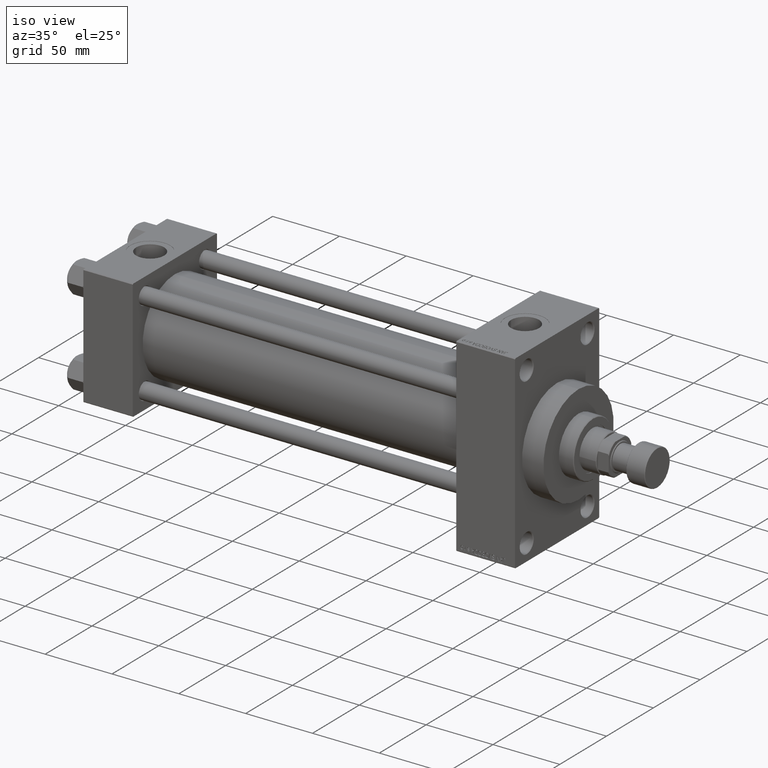
[diagram: clean part render]
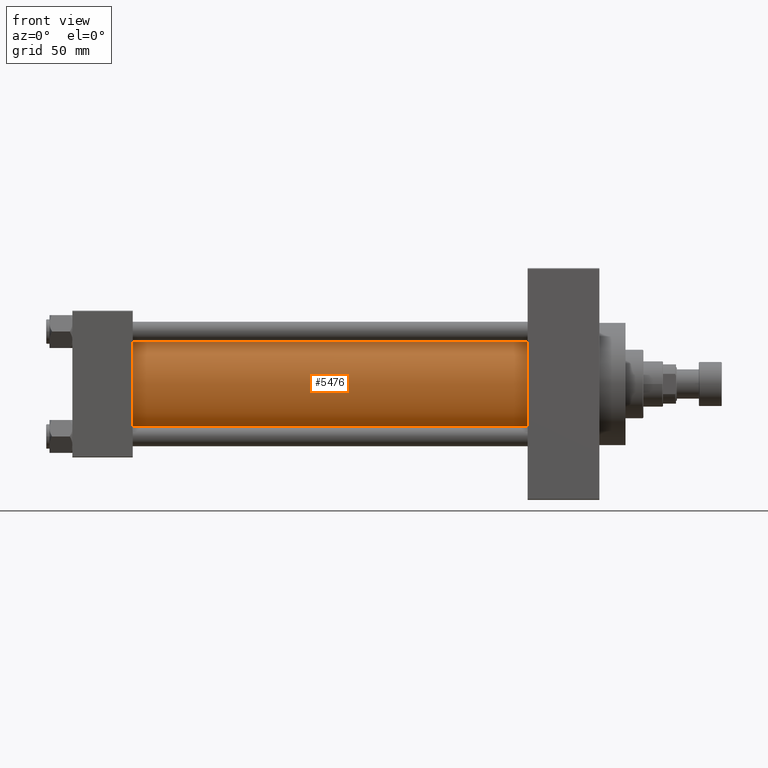
[diagram: tour spotlight — one face highlighted and labeled with its STEP entity id]
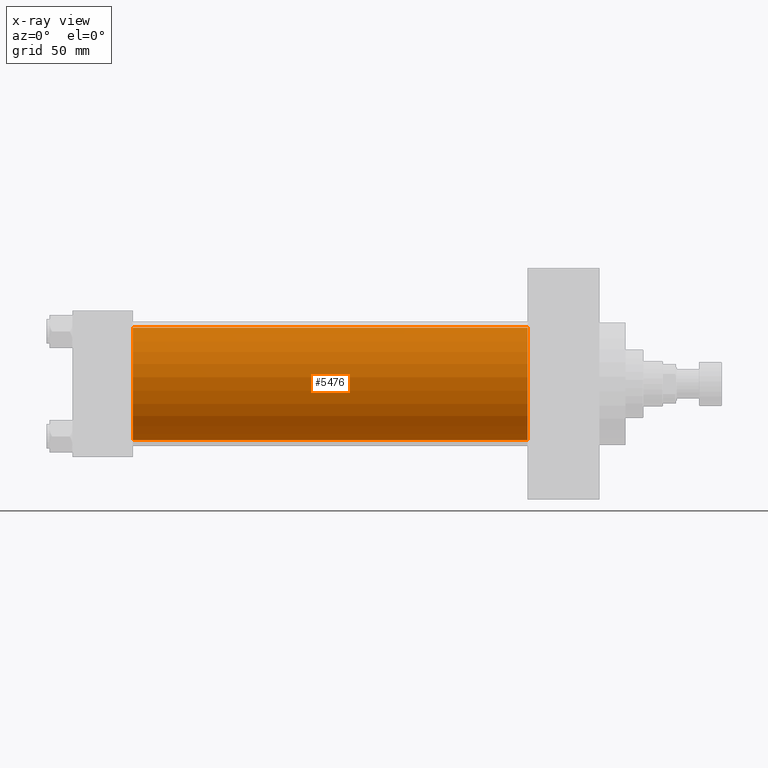
[diagram: x-ray of the same camera — body ghosted, this tour face saturated]
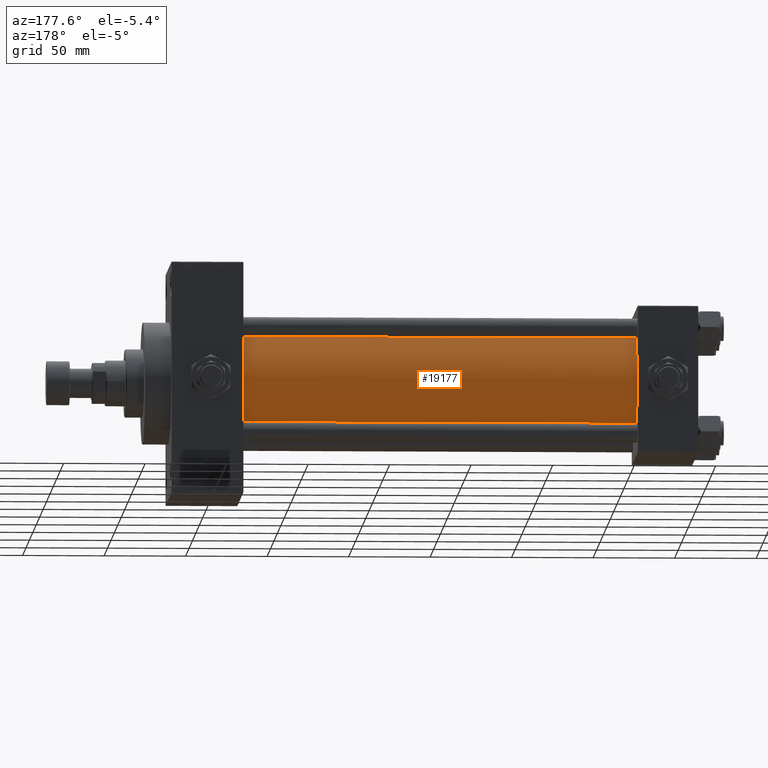
[diagram: tour spotlight — one face highlighted and labeled with its STEP entity id]
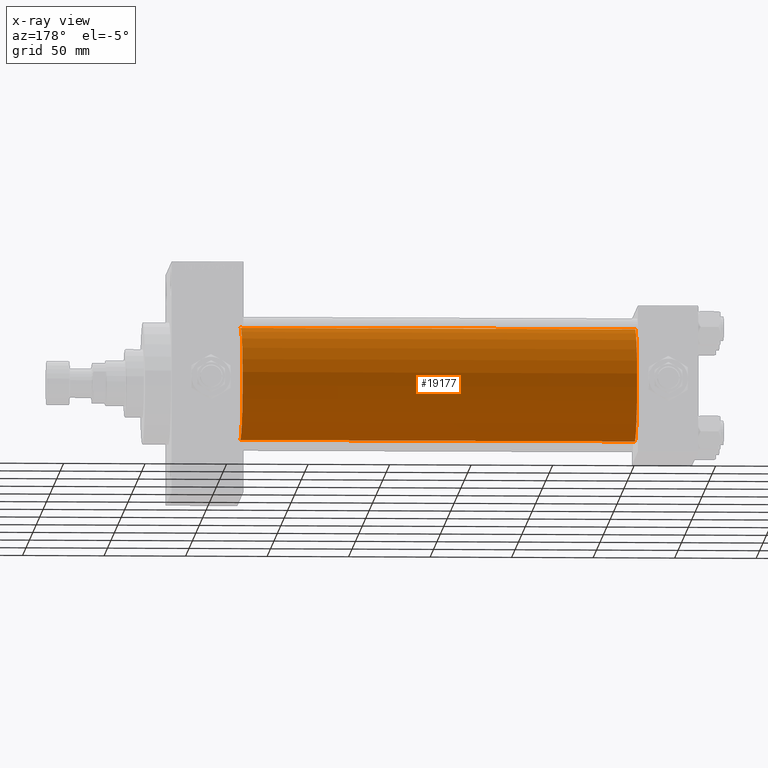
[diagram: x-ray of the same camera — body ghosted, this tour face saturated]
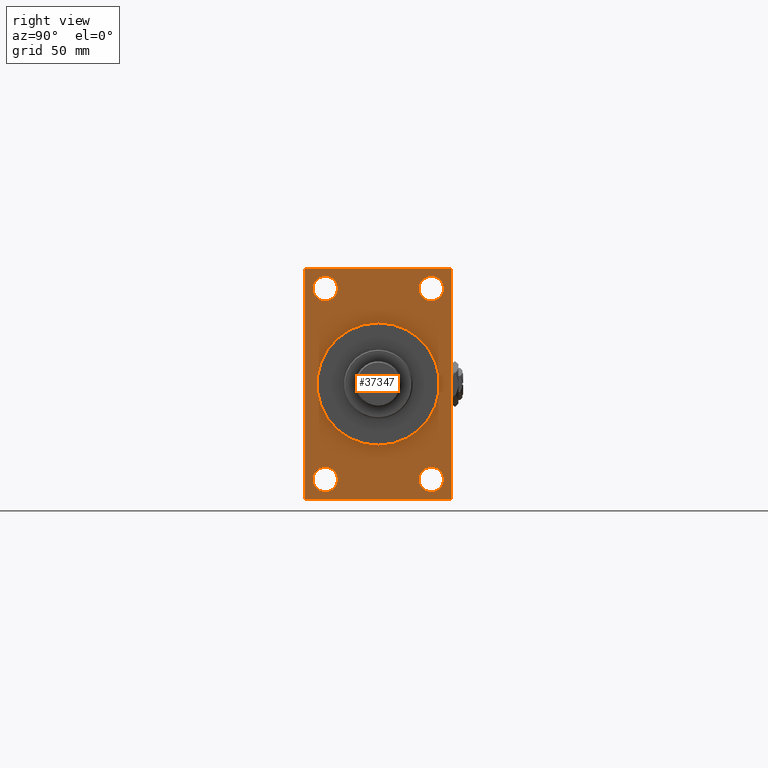
[diagram: tour spotlight — one face highlighted and labeled with its STEP entity id]
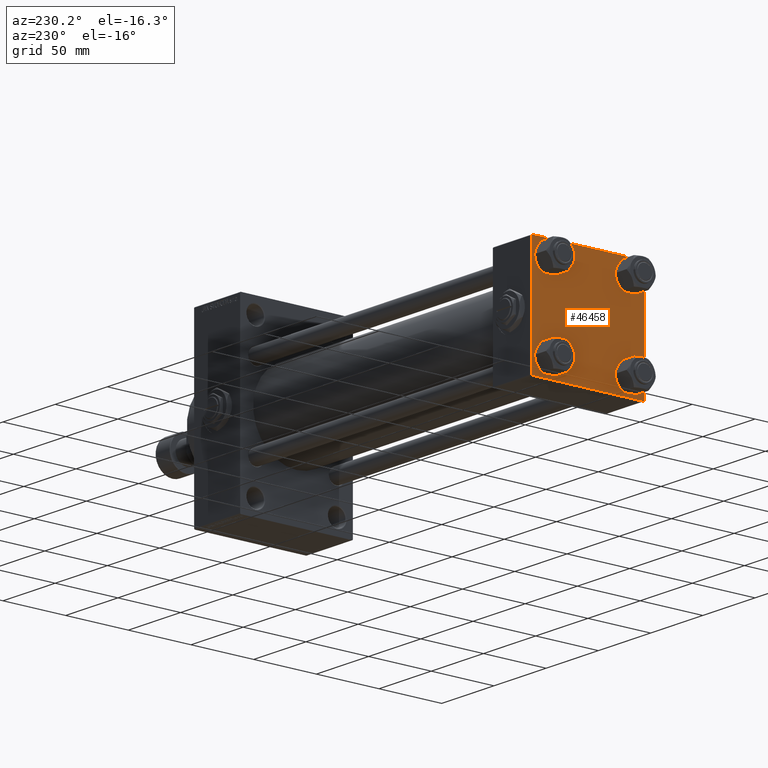
[diagram: tour spotlight — one face highlighted and labeled with its STEP entity id]
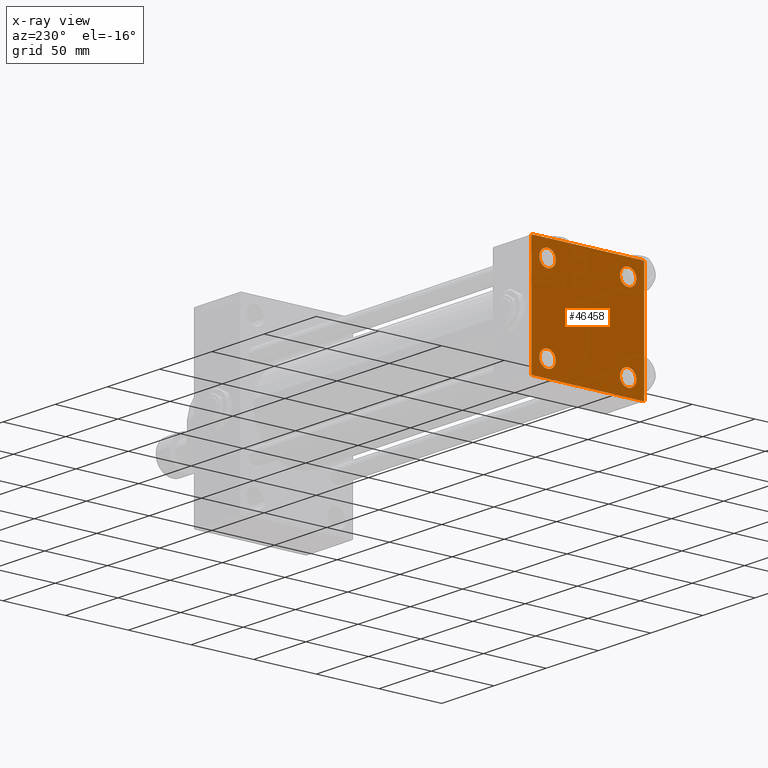
[diagram: x-ray of the same camera — body ghosted, this tour face saturated]
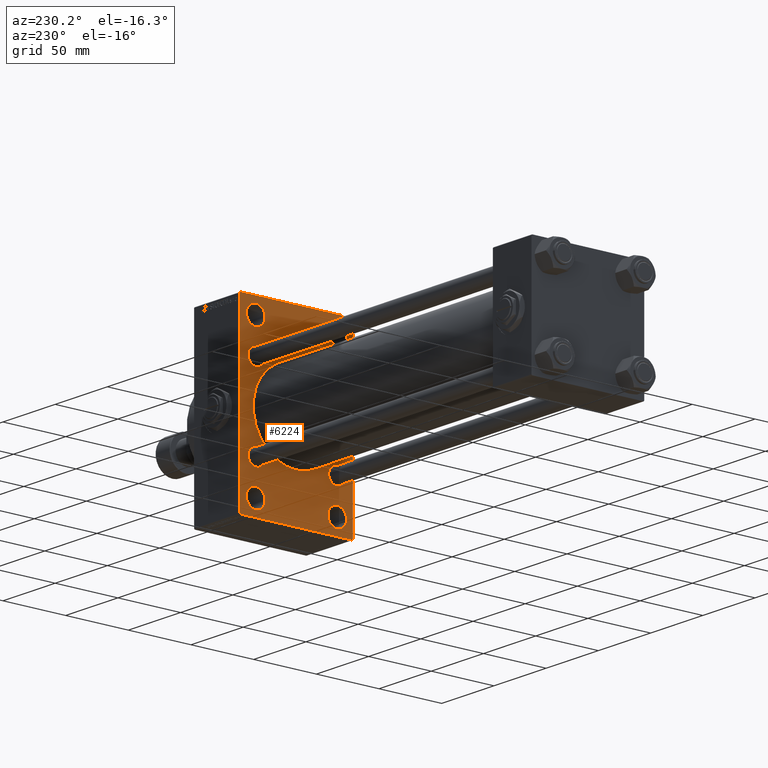
[diagram: tour spotlight — one face highlighted and labeled with its STEP entity id]
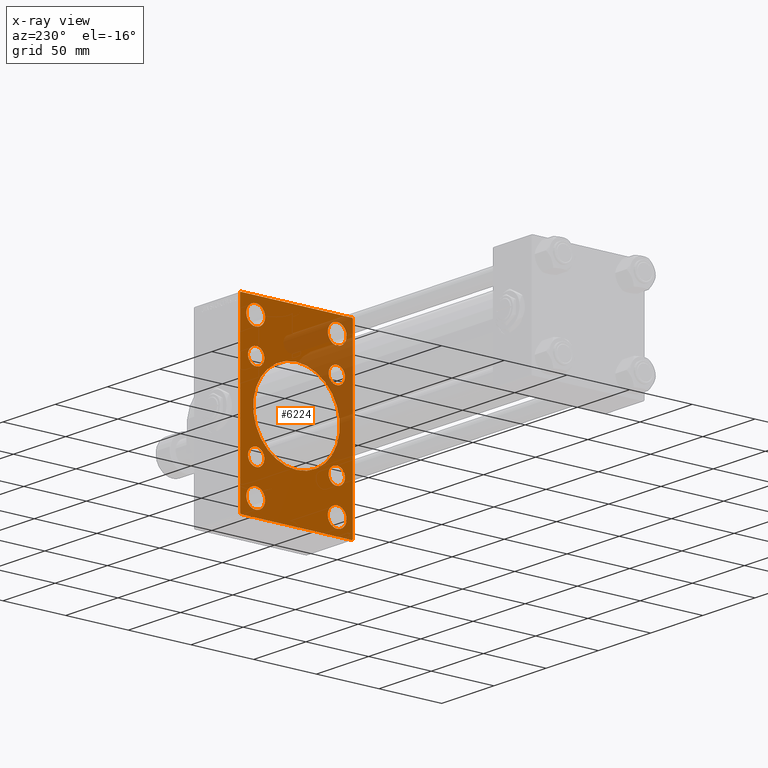
[diagram: x-ray of the same camera — body ghosted, this tour face saturated]
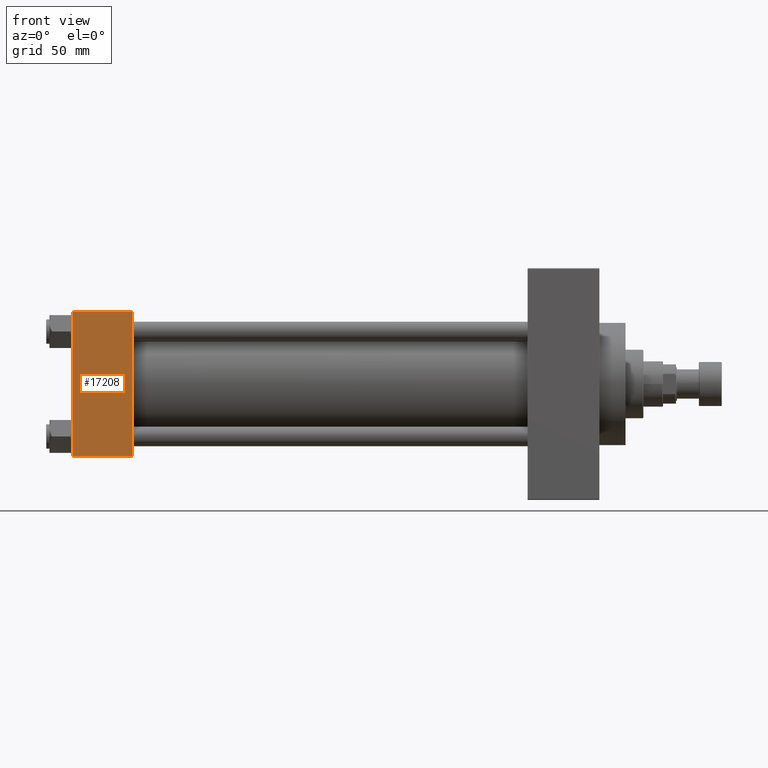
[diagram: tour spotlight — one face highlighted and labeled with its STEP entity id]
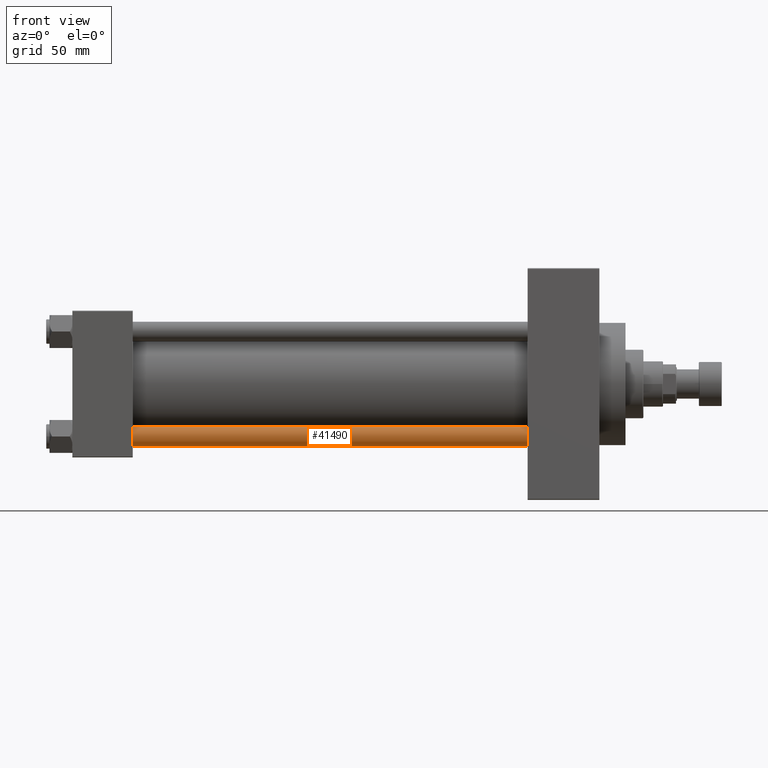
[diagram: tour spotlight — one face highlighted and labeled with its STEP entity id]
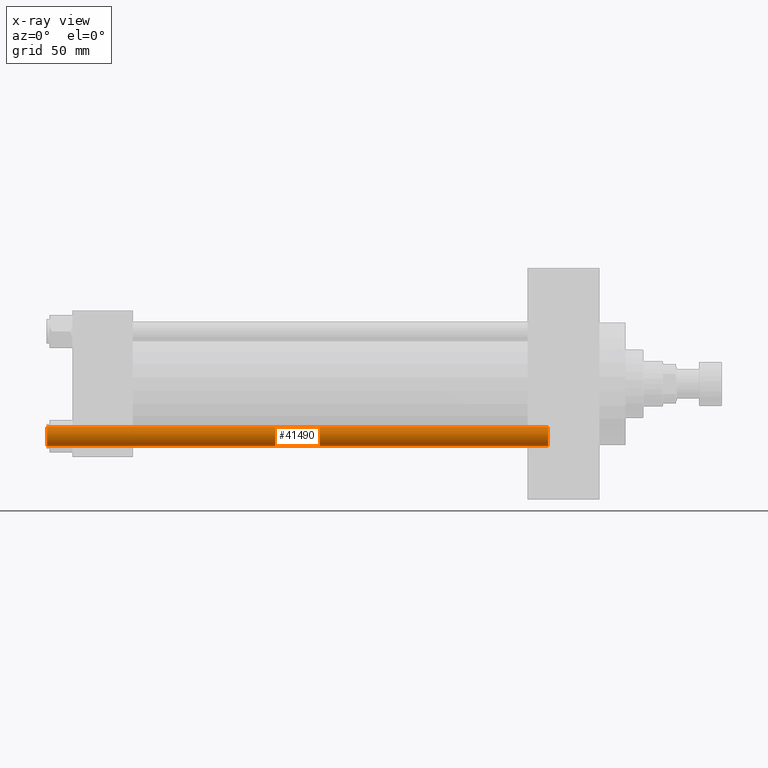
[diagram: x-ray of the same camera — body ghosted, this tour face saturated]
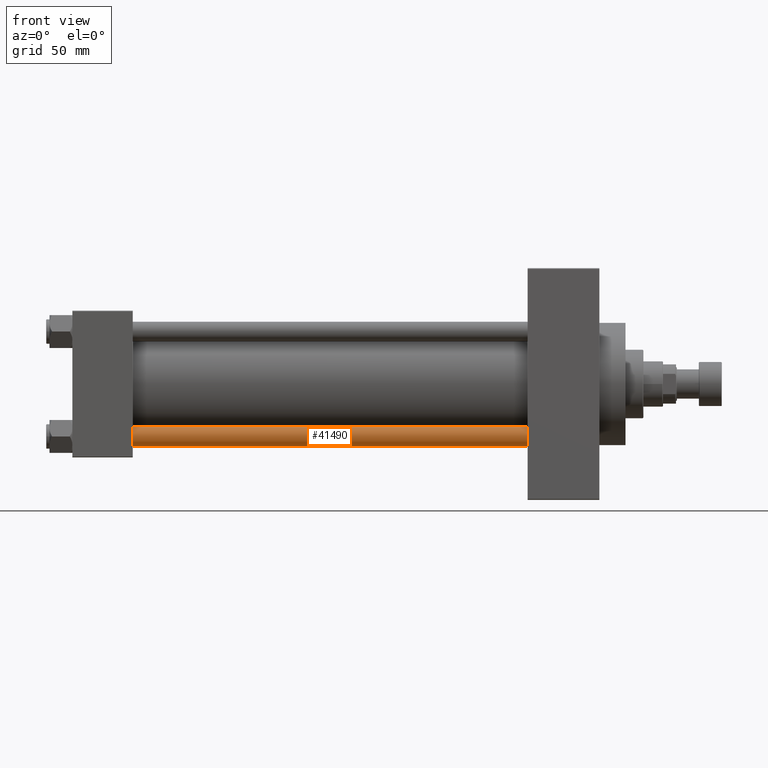
[diagram: tour spotlight — one face highlighted and labeled with its STEP entity id]
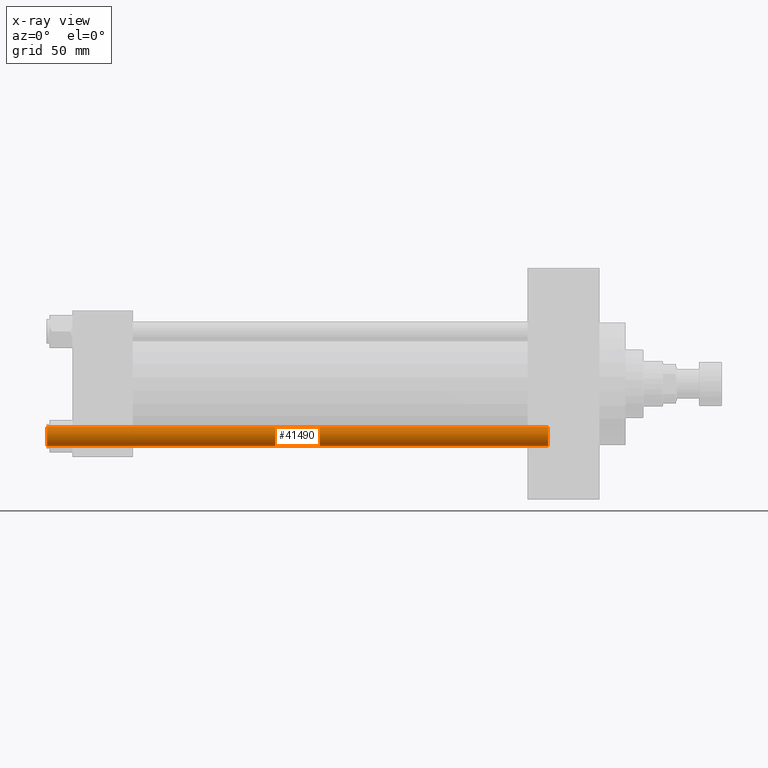
[diagram: x-ray of the same camera — body ghosted, this tour face saturated]
A machine part: a face-by-face anatomy tour. The part has 1218 B-rep faces; the first image is the clean iso view, then the 8 largest visible faces are spotlighted one at a time (largest first), each with its STEP entity span.

Face 1 — front view, entity #5476. An x-ray twin of the same camera follows (body ghosted, this face saturated) — the face is partly hidden behind the body. In plain terms, the highlighted cylindrical surface (partial cylindrical patch) has radius 34.5 mm, axis along (-1, -0, -0).
Definition (entity closure, byte-faithful):
#54 = CIRCLE ( 'NONE', #20958, 34.50000000000000000 ) ;
#1197 = CARTESIAN_POINT ( 'NONE',  ( 37.00000000000000711, -2.602085213965210642E-15, 0.000000000000000000 ) ) ;
#3170 = ORIENTED_EDGE ( 'NONE', *, *, #12891, .F. ) ;
#4835 = CARTESIAN_POINT ( 'NONE',  ( 278.9999999999999432, -2.602085213965210642E-15, 0.000000000000000000 ) ) ;
#5476 = ADVANCED_FACE ( 'NONE', ( #43321 ), #8605, .T. ) ;
#6675 = CARTESIAN_POINT ( 'NONE',  ( 278.9999999999999432, -2.602085213965210642E-15, 34.50000000000000000 ) ) ;
#6950 = DIRECTION ( 'NONE',  ( 1.000000000000000000, 0.000000000000000000, 0.000000000000000000 ) ) ;
#8605 = CYLINDRICAL_SURFACE ( 'NONE', #26600, 34.50000000000000000 ) ;
#8904 = DIRECTION ( 'NONE',  ( -1.000000000000000000, -0.000000000000000000, -0.000000000000000000 ) ) ;
#10056 = EDGE_CURVE ( 'NONE', #19360, #20726, #45977, .T. ) ;
#11570 = CIRCLE ( 'NONE', #34879, 34.50000000000000000 ) ;
#12277 = DIRECTION ( 'NONE',  ( 1.000000000000000000, -0.000000000000000000, 0.000000000000000000 ) ) ;
#12700 = CARTESIAN_POINT ( 'NONE',  ( 278.9999999999999432, 1.622946243093158675E-15, -34.50000000000000000 ) ) ;
#12891 = EDGE_CURVE ( 'NONE', #43615, #35632, #31317, .T. ) ;
#13153 = EDGE_LOOP ( 'NONE', ( #3170, #27507, #14238, #44811 ) ) ;
#14238 = ORIENTED_EDGE ( 'NONE', *, *, #10056, .T. ) ;
#19360 = VERTEX_POINT ( 'NONE', #6675 ) ;
#19584 = DIRECTION ( 'NONE',  ( 0.000000000000000000, 0.000000000000000000, 1.000000000000000000 ) ) ;
#20182 = DIRECTION ( 'NONE',  ( 0.000000000000000000, 0.000000000000000000, 1.000000000000000000 ) ) ;
#20726 = VERTEX_POINT ( 'NONE', #41180 ) ;
#20958 = AXIS2_PLACEMENT_3D ( 'NONE', #1197, #12277, #19584 ) ;
#22313 = DIRECTION ( 'NONE',  ( 0.000000000000000000, 0.000000000000000000, -1.000000000000000000 ) ) ;
#26600 = AXIS2_PLACEMENT_3D ( 'NONE', #4835, #36259, #20182 ) ;
#27507 = ORIENTED_EDGE ( 'NONE', *, *, #39705, .F. ) ;
#28450 = EDGE_CURVE ( 'NONE', #20726, #35632, #54, .T. ) ;
#28456 = VECTOR ( 'NONE', #8904, 1000.000000000000000 ) ;
#30869 = CARTESIAN_POINT ( 'NONE',  ( 278.9999999999999432, -2.602085213965210642E-15, 34.50000000000000000 ) ) ;
#31317 = LINE ( 'NONE', #12700, #28456 ) ;
#34393 = DIRECTION ( 'NONE',  ( -1.000000000000000000, -0.000000000000000000, -0.000000000000000000 ) ) ;
#34879 = AXIS2_PLACEMENT_3D ( 'NONE', #41424, #6950, #22313 ) ;
#35632 = VERTEX_POINT ( 'NONE', #48572 ) ;
#36259 = DIRECTION ( 'NONE',  ( -1.000000000000000000, -0.000000000000000000, -0.000000000000000000 ) ) ;
#39705 = EDGE_CURVE ( 'NONE', #19360, #43615, #11570, .T. ) ;
#41180 = CARTESIAN_POINT ( 'NONE',  ( 37.00000000000000711, -2.602085213965210642E-15, 34.50000000000000000 ) ) ;
#41424 = CARTESIAN_POINT ( 'NONE',  ( 278.9999999999999432, -2.602085213965210642E-15, 0.000000000000000000 ) ) ;
#42801 = VECTOR ( 'NONE', #34393, 1000.000000000000000 ) ;
#43321 = FACE_OUTER_BOUND ( 'NONE', #13153, .T. ) ;
#43615 = VERTEX_POINT ( 'NONE', #44076 ) ;
#44076 = CARTESIAN_POINT ( 'NONE',  ( 278.9999999999999432, 1.622946243093158675E-15, -34.50000000000000000 ) ) ;
#44811 = ORIENTED_EDGE ( 'NONE', *, *, #28450, .T. ) ;
#45977 = LINE ( 'NONE', #30869, #42801 ) ;
#48572 = CARTESIAN_POINT ( 'NONE',  ( 37.00000000000000711, 1.622946243093158675E-15, -34.50000000000000000 ) ) ;

Face 2 — auxiliary view, entity #19177. An x-ray twin of the same camera follows (body ghosted, this face saturated) — the face is partly hidden behind the body. In plain terms, the highlighted cylindrical surface (partial cylindrical patch) has radius 34.5 mm, axis along (-1, -0, -0).
Definition (entity closure, byte-faithful):
#3631 = DIRECTION ( 'NONE',  ( 0.000000000000000000, 0.000000000000000000, -1.000000000000000000 ) ) ;
#4583 = CIRCLE ( 'NONE', #25484, 34.50000000000000000 ) ;
#6675 = CARTESIAN_POINT ( 'NONE',  ( 278.9999999999999432, -2.602085213965210642E-15, 34.50000000000000000 ) ) ;
#7283 = CYLINDRICAL_SURFACE ( 'NONE', #24555, 34.50000000000000000 ) ;
#8009 = DIRECTION ( 'NONE',  ( 0.000000000000000000, 0.000000000000000000, 1.000000000000000000 ) ) ;
#8904 = DIRECTION ( 'NONE',  ( -1.000000000000000000, -0.000000000000000000, -0.000000000000000000 ) ) ;
#10056 = EDGE_CURVE ( 'NONE', #19360, #20726, #45977, .T. ) ;
#10259 = ORIENTED_EDGE ( 'NONE', *, *, #10056, .F. ) ;
#12700 = CARTESIAN_POINT ( 'NONE',  ( 278.9999999999999432, 1.622946243093158675E-15, -34.50000000000000000 ) ) ;
#12891 = EDGE_CURVE ( 'NONE', #43615, #35632, #31317, .T. ) ;
#13866 = ORIENTED_EDGE ( 'NONE', *, *, #12891, .T. ) ;
#18378 = DIRECTION ( 'NONE',  ( -1.000000000000000000, -0.000000000000000000, -0.000000000000000000 ) ) ;
#19177 = ADVANCED_FACE ( 'NONE', ( #48337 ), #7283, .T. ) ;
#19360 = VERTEX_POINT ( 'NONE', #6675 ) ;
#20726 = VERTEX_POINT ( 'NONE', #41180 ) ;
#22830 = EDGE_CURVE ( 'NONE', #43615, #19360, #4583, .T. ) ;
#24555 = AXIS2_PLACEMENT_3D ( 'NONE', #41018, #18378, #45294 ) ;
#25484 = AXIS2_PLACEMENT_3D ( 'NONE', #45654, #46650, #3631 ) ;
#26012 = EDGE_LOOP ( 'NONE', ( #31027, #13866, #44266, #10259 ) ) ;
#28456 = VECTOR ( 'NONE', #8904, 1000.000000000000000 ) ;
#29488 = CARTESIAN_POINT ( 'NONE',  ( 37.00000000000000711, -2.602085213965210642E-15, 0.000000000000000000 ) ) ;
#30869 = CARTESIAN_POINT ( 'NONE',  ( 278.9999999999999432, -2.602085213965210642E-15, 34.50000000000000000 ) ) ;
#31027 = ORIENTED_EDGE ( 'NONE', *, *, #22830, .F. ) ;
#31317 = LINE ( 'NONE', #12700, #28456 ) ;
#32399 = CIRCLE ( 'NONE', #42062, 34.50000000000000000 ) ;
#33245 = DIRECTION ( 'NONE',  ( 1.000000000000000000, -0.000000000000000000, 0.000000000000000000 ) ) ;
#34363 = EDGE_CURVE ( 'NONE', #35632, #20726, #32399, .T. ) ;
#34393 = DIRECTION ( 'NONE',  ( -1.000000000000000000, -0.000000000000000000, -0.000000000000000000 ) ) ;
#35632 = VERTEX_POINT ( 'NONE', #48572 ) ;
#41018 = CARTESIAN_POINT ( 'NONE',  ( 278.9999999999999432, -2.602085213965210642E-15, 0.000000000000000000 ) ) ;
#41180 = CARTESIAN_POINT ( 'NONE',  ( 37.00000000000000711, -2.602085213965210642E-15, 34.50000000000000000 ) ) ;
#42062 = AXIS2_PLACEMENT_3D ( 'NONE', #29488, #33245, #8009 ) ;
#42801 = VECTOR ( 'NONE', #34393, 1000.000000000000000 ) ;
#43615 = VERTEX_POINT ( 'NONE', #44076 ) ;
#44076 = CARTESIAN_POINT ( 'NONE',  ( 278.9999999999999432, 1.622946243093158675E-15, -34.50000000000000000 ) ) ;
#44266 = ORIENTED_EDGE ( 'NONE', *, *, #34363, .T. ) ;
#45294 = DIRECTION ( 'NONE',  ( 0.000000000000000000, 0.000000000000000000, 1.000000000000000000 ) ) ;
#45654 = CARTESIAN_POINT ( 'NONE',  ( 278.9999999999999432, -2.602085213965210642E-15, 0.000000000000000000 ) ) ;
#45977 = LINE ( 'NONE', #30869, #42801 ) ;
#46650 = DIRECTION ( 'NONE',  ( 1.000000000000000000, 0.000000000000000000, 0.000000000000000000 ) ) ;
#48337 = FACE_OUTER_BOUND ( 'NONE', #26012, .T. ) ;
#48572 = CARTESIAN_POINT ( 'NONE',  ( 37.00000000000000711, 1.622946243093158675E-15, -34.50000000000000000 ) ) ;

Face 3 — right view, entity #37347. In plain terms, the highlighted planar face has unit normal (-1, 0, 0).
Definition (entity closure, byte-faithful):
#183 = DIRECTION ( 'NONE',  ( 0.000000000000000000, 0.000000000000000000, -1.000000000000000000 ) ) ;
#293 = EDGE_CURVE ( 'NONE', #16592, #29165, #40446, .T. ) ;
#893 = CARTESIAN_POINT ( 'NONE',  ( 322.9999999999999432, -32.50000000000000000, 58.50000000000000711 ) ) ;
#1020 = AXIS2_PLACEMENT_3D ( 'NONE', #37035, #2582, #49312 ) ;
#1255 = DIRECTION ( 'NONE',  ( -1.000000000000000000, 0.000000000000000000, -0.000000000000000000 ) ) ;
#1354 = ORIENTED_EDGE ( 'NONE', *, *, #35866, .F. ) ;
#1654 = CARTESIAN_POINT ( 'NONE',  ( 322.9999999999999432, 0.000000000000000000, 0.000000000000000000 ) ) ;
#1735 = LINE ( 'NONE', #24897, #33576 ) ;
#2072 = DIRECTION ( 'NONE',  ( 0.000000000000000000, 0.7071067811865574537, -0.7071067811865376918 ) ) ;
#2448 = CARTESIAN_POINT ( 'NONE',  ( 322.9999999999999432, 32.50000000000000711, 50.99999999999996447 ) ) ;
#2582 = DIRECTION ( 'NONE',  ( -1.000000000000000000, 0.000000000000000000, -0.000000000000000000 ) ) ;
#2737 = DIRECTION ( 'NONE',  ( 0.000000000000000000, 0.000000000000000000, -1.000000000000000000 ) ) ;
#3325 = AXIS2_PLACEMENT_3D ( 'NONE', #18731, #11424, #41625 ) ;
#3395 = EDGE_CURVE ( 'NONE', #40949, #41697, #42690, .T. ) ;
#3727 = VERTEX_POINT ( 'NONE', #25983 ) ;
#5224 = CIRCLE ( 'NONE', #40602, 37.50000000000000711 ) ;
#5480 = ORIENTED_EDGE ( 'NONE', *, *, #18398, .F. ) ;
#5481 = CARTESIAN_POINT ( 'NONE',  ( 322.9999999999999432, -44.50000000000000000, -71.00000000000000000 ) ) ;
#5764 = ORIENTED_EDGE ( 'NONE', *, *, #12222, .T. ) ;
#5903 = AXIS2_PLACEMENT_3D ( 'NONE', #47374, #47124, #27755 ) ;
#6279 = EDGE_CURVE ( 'NONE', #20303, #42138, #16911, .T. ) ;
#6689 = VERTEX_POINT ( 'NONE', #9039 ) ;
#6780 = VERTEX_POINT ( 'NONE', #28921 ) ;
#7078 = ORIENTED_EDGE ( 'NONE', *, *, #48125, .T. ) ;
#7256 = EDGE_CURVE ( 'NONE', #31466, #22144, #37902, .T. ) ;
#7334 = ORIENTED_EDGE ( 'NONE', *, *, #7884, .T. ) ;
#7884 = EDGE_CURVE ( 'NONE', #18589, #23502, #17615, .T. ) ;
#8171 = VECTOR ( 'NONE', #49054, 1000.000000000000114 ) ;
#8456 = VERTEX_POINT ( 'NONE', #15146 ) ;
#8944 = AXIS2_PLACEMENT_3D ( 'NONE', #32580, #43403, #16490 ) ;
#9039 = CARTESIAN_POINT ( 'NONE',  ( 322.9999999999999432, 32.50000000000000711, -50.99999999999993605 ) ) ;
#9626 = FACE_OUTER_BOUND ( 'NONE', #22705, .T. ) ;
#9911 = CARTESIAN_POINT ( 'NONE',  ( 322.9999999999999432, 32.50000000000000711, -58.50000000000000000 ) ) ;
#11423 = VECTOR ( 'NONE', #18072, 1000.000000000000000 ) ;
#11424 = DIRECTION ( 'NONE',  ( -1.000000000000000000, 0.000000000000000000, -0.000000000000000000 ) ) ;
#11747 = VECTOR ( 'NONE', #17903, 999.9999999999998863 ) ;
#12062 = DIRECTION ( 'NONE',  ( 0.000000000000000000, -4.886545002751570165E-17, -1.000000000000000000 ) ) ;
#12222 = EDGE_CURVE ( 'NONE', #22144, #31466, #49308, .T. ) ;
#12466 = DIRECTION ( 'NONE',  ( 0.000000000000000000, 0.000000000000000000, 1.000000000000000000 ) ) ;
#12582 = CARTESIAN_POINT ( 'NONE',  ( 322.9999999999999432, 32.50000000000000711, -58.50000000000000000 ) ) ;
#12727 = ORIENTED_EDGE ( 'NONE', *, *, #32484, .F. ) ;
#13354 = DIRECTION ( 'NONE',  ( 0.000000000000000000, 0.000000000000000000, 1.000000000000000000 ) ) ;
#13491 = CARTESIAN_POINT ( 'NONE',  ( 322.9999999999999432, -32.50000000000000000, 66.00000000000005684 ) ) ;
#13915 = FACE_BOUND ( 'NONE', #23435, .T. ) ;
#14031 = CIRCLE ( 'NONE', #43745, 7.500000000000055067 ) ;
#14183 = VERTEX_POINT ( 'NONE', #39557 ) ;
#14237 = CARTESIAN_POINT ( 'NONE',  ( 322.9999999999999432, 45.00000000000001421, -70.50000000000001421 ) ) ;
#14331 = ORIENTED_EDGE ( 'NONE', *, *, #44627, .T. ) ;
#14390 = CARTESIAN_POINT ( 'NONE',  ( 322.9999999999999432, -44.99999999999997158, 70.50000000000002842 ) ) ;
#15146 = CARTESIAN_POINT ( 'NONE',  ( 322.9999999999999432, 32.50000000000000711, -66.00000000000005684 ) ) ;
#15783 = EDGE_CURVE ( 'NONE', #23502, #6780, #39390, .T. ) ;
#16133 = CARTESIAN_POINT ( 'NONE',  ( 322.9999999999999432, -32.50000000000000000, -50.99999999999992895 ) ) ;
#16381 = DIRECTION ( 'NONE',  ( 0.000000000000000000, 0.000000000000000000, 1.000000000000000000 ) ) ;
#16490 = DIRECTION ( 'NONE',  ( 0.000000000000000000, 0.000000000000000000, 1.000000000000000000 ) ) ;
#16523 = LINE ( 'NONE', #28088, #29921 ) ;
#16592 = VERTEX_POINT ( 'NONE', #13491 ) ;
#16617 = CARTESIAN_POINT ( 'NONE',  ( 322.9999999999999432, -32.50000000000000000, -58.49999999999999289 ) ) ;
#16774 = CARTESIAN_POINT ( 'NONE',  ( 322.9999999999999432, -32.50000000000000000, 50.99999999999996447 ) ) ;
#16911 = LINE ( 'NONE', #35528, #23494 ) ;
#17102 = EDGE_CURVE ( 'NONE', #29165, #16592, #42254, .T. ) ;
#17333 = CARTESIAN_POINT ( 'NONE',  ( 322.9999999999999432, 45.00000000000001421, -70.99999999999998579 ) ) ;
#17615 = LINE ( 'NONE', #25905, #8171 ) ;
#17696 = CARTESIAN_POINT ( 'NONE',  ( 322.9999999999999432, 44.50000000000002132, 71.00000000000000000 ) ) ;
#17903 = DIRECTION ( 'NONE',  ( -0.000000000000000000, -0.7071067811865425767, -0.7071067811865525687 ) ) ;
#18072 = DIRECTION ( 'NONE',  ( 0.000000000000000000, -1.000000000000000000, -1.541976423090495633E-16 ) ) ;
#18398 = EDGE_CURVE ( 'NONE', #3727, #14183, #5224, .T. ) ;
#18589 = VERTEX_POINT ( 'NONE', #38108 ) ;
#18731 = CARTESIAN_POINT ( 'NONE',  ( 322.9999999999999432, -32.50000000000000000, -58.49999999999999289 ) ) ;
#18862 = ORIENTED_EDGE ( 'NONE', *, *, #3395, .T. ) ;
#19178 = ORIENTED_EDGE ( 'NONE', *, *, #293, .T. ) ;
#19220 = CARTESIAN_POINT ( 'NONE',  ( 322.9999999999999432, 32.50000000000000711, 66.00000000000005684 ) ) ;
#19491 = VERTEX_POINT ( 'NONE', #39121 ) ;
#19557 = CIRCLE ( 'NONE', #21173, 37.50000000000000711 ) ;
#19999 = EDGE_CURVE ( 'NONE', #6689, #8456, #20562, .T. ) ;
#20031 = DIRECTION ( 'NONE',  ( 0.000000000000000000, -1.000000000000000000, -1.541976423090495387E-16 ) ) ;
#20228 = ORIENTED_EDGE ( 'NONE', *, *, #32759, .T. ) ;
#20303 = VERTEX_POINT ( 'NONE', #26624 ) ;
#20402 = CARTESIAN_POINT ( 'NONE',  ( 322.9999999999999432, -32.50000000000000000, 58.50000000000000711 ) ) ;
#20528 = VECTOR ( 'NONE', #20031, 1000.000000000000000 ) ;
#20532 = DIRECTION ( 'NONE',  ( 1.000000000000000000, 0.000000000000000000, 0.000000000000000000 ) ) ;
#20562 = CIRCLE ( 'NONE', #47871, 7.500000000000062172 ) ;
#20656 = DIRECTION ( 'NONE',  ( -1.000000000000000000, 0.000000000000000000, -0.000000000000000000 ) ) ;
#20750 = DIRECTION ( 'NONE',  ( 0.000000000000000000, 0.000000000000000000, 1.000000000000000000 ) ) ;
#20874 = DIRECTION ( 'NONE',  ( 0.000000000000000000, 0.000000000000000000, 1.000000000000000000 ) ) ;
#20995 = AXIS2_PLACEMENT_3D ( 'NONE', #9911, #25271, #20750 ) ;
#21173 = AXIS2_PLACEMENT_3D ( 'NONE', #1654, #20532, #24060 ) ;
#21447 = LINE ( 'NONE', #14390, #11747 ) ;
#22144 = VERTEX_POINT ( 'NONE', #19220 ) ;
#22705 = EDGE_LOOP ( 'NONE', ( #7078, #36545, #12727, #20228, #1354, #7334, #46308, #14331 ) ) ;
#23147 = ORIENTED_EDGE ( 'NONE', *, *, #19999, .T. ) ;
#23435 = EDGE_LOOP ( 'NONE', ( #27359, #5764 ) ) ;
#23494 = VECTOR ( 'NONE', #2072, 999.9999999999998863 ) ;
#23502 = VERTEX_POINT ( 'NONE', #17696 ) ;
#24060 = DIRECTION ( 'NONE',  ( 0.000000000000000000, 0.000000000000000000, -1.000000000000000000 ) ) ;
#24897 = CARTESIAN_POINT ( 'NONE',  ( 322.9999999999999432, -44.99999999999997158, 70.99999999999998579 ) ) ;
#25027 = CIRCLE ( 'NONE', #20995, 7.500000000000062172 ) ;
#25271 = DIRECTION ( 'NONE',  ( -1.000000000000000000, 0.000000000000000000, -0.000000000000000000 ) ) ;
#25486 = PLANE ( 'NONE',  #1020 ) ;
#25905 = CARTESIAN_POINT ( 'NONE',  ( 322.9999999999999432, 44.50000000000002132, 71.00000000000000000 ) ) ;
#25983 = CARTESIAN_POINT ( 'NONE',  ( 322.9999999999999432, 0.000000000000000000, 37.50000000000000711 ) ) ;
#26033 = EDGE_LOOP ( 'NONE', ( #28643, #23147 ) ) ;
#26624 = CARTESIAN_POINT ( 'NONE',  ( 322.9999999999999432, -44.99999999999997158, -70.50000000000005684 ) ) ;
#27359 = ORIENTED_EDGE ( 'NONE', *, *, #7256, .T. ) ;
#27644 = VECTOR ( 'NONE', #12062, 1000.000000000000000 ) ;
#27755 = DIRECTION ( 'NONE',  ( 0.000000000000000000, 0.000000000000000000, 1.000000000000000000 ) ) ;
#28088 = CARTESIAN_POINT ( 'NONE',  ( 322.9999999999999432, 45.00000000000001421, -70.50000000000001421 ) ) ;
#28324 = ORIENTED_EDGE ( 'NONE', *, *, #17102, .T. ) ;
#28643 = ORIENTED_EDGE ( 'NONE', *, *, #29541, .T. ) ;
#28921 = CARTESIAN_POINT ( 'NONE',  ( 322.9999999999999432, -44.50000000000000711, 70.99999999999998579 ) ) ;
#29165 = VERTEX_POINT ( 'NONE', #16774 ) ;
#29249 = FACE_BOUND ( 'NONE', #40254, .T. ) ;
#29541 = EDGE_CURVE ( 'NONE', #8456, #6689, #25027, .T. ) ;
#29921 = VECTOR ( 'NONE', #35391, 1000.000000000000114 ) ;
#30117 = DIRECTION ( 'NONE',  ( 1.000000000000000000, 0.000000000000000000, 0.000000000000000000 ) ) ;
#30413 = CARTESIAN_POINT ( 'NONE',  ( 322.9999999999999432, -32.50000000000000000, -66.00000000000004263 ) ) ;
#30426 = VERTEX_POINT ( 'NONE', #36593 ) ;
#30925 = ORIENTED_EDGE ( 'NONE', *, *, #35018, .F. ) ;
#31345 = CARTESIAN_POINT ( 'NONE',  ( 322.9999999999999432, 45.00000000000002132, 71.00000000000000000 ) ) ;
#31466 = VERTEX_POINT ( 'NONE', #2448 ) ;
#31662 = CARTESIAN_POINT ( 'NONE',  ( 322.9999999999999432, 45.00000000000002132, 71.00000000000000000 ) ) ;
#31822 = DIRECTION ( 'NONE',  ( -1.000000000000000000, 0.000000000000000000, -0.000000000000000000 ) ) ;
#32484 = EDGE_CURVE ( 'NONE', #30426, #42138, #32672, .T. ) ;
#32580 = CARTESIAN_POINT ( 'NONE',  ( 322.9999999999999432, 32.50000000000000711, 58.50000000000000711 ) ) ;
#32672 = LINE ( 'NONE', #17333, #11423 ) ;
#32759 = EDGE_CURVE ( 'NONE', #30426, #46145, #16523, .T. ) ;
#33011 = FACE_BOUND ( 'NONE', #49688, .T. ) ;
#33576 = VECTOR ( 'NONE', #2737, 1000.000000000000000 ) ;
#35018 = EDGE_CURVE ( 'NONE', #14183, #3727, #19557, .T. ) ;
#35391 = DIRECTION ( 'NONE',  ( -0.000000000000000000, 0.7071067811865376918, 0.7071067811865573427 ) ) ;
#35528 = CARTESIAN_POINT ( 'NONE',  ( 322.9999999999999432, -44.50000000000002842, -71.00000000000000000 ) ) ;
#35866 = EDGE_CURVE ( 'NONE', #18589, #46145, #40652, .T. ) ;
#36545 = ORIENTED_EDGE ( 'NONE', *, *, #6279, .T. ) ;
#36593 = CARTESIAN_POINT ( 'NONE',  ( 322.9999999999999432, 44.50000000000006395, -70.99999999999998579 ) ) ;
#36613 = AXIS2_PLACEMENT_3D ( 'NONE', #20402, #20656, #16381 ) ;
#37035 = CARTESIAN_POINT ( 'NONE',  ( 322.9999999999999432, 0.000000000000000000, 0.000000000000000000 ) ) ;
#37347 = ADVANCED_FACE ( 'NONE', ( #33011, #41991, #48380, #13915, #29249, #9626 ), #25486, .F. ) ;
#37425 = CARTESIAN_POINT ( 'NONE',  ( 322.9999999999999432, 0.000000000000000000, 0.000000000000000000 ) ) ;
#37902 = CIRCLE ( 'NONE', #8944, 7.500000000000047962 ) ;
#38108 = CARTESIAN_POINT ( 'NONE',  ( 322.9999999999999432, 45.00000000000002132, 70.50000000000000000 ) ) ;
#39121 = CARTESIAN_POINT ( 'NONE',  ( 322.9999999999999432, -44.99999999999997158, 70.50000000000002842 ) ) ;
#39390 = LINE ( 'NONE', #31345, #20528 ) ;
#39557 = CARTESIAN_POINT ( 'NONE',  ( 322.9999999999999432, 4.592425496802575156E-15, -37.50000000000000711 ) ) ;
#40011 = DIRECTION ( 'NONE',  ( -1.000000000000000000, 0.000000000000000000, -0.000000000000000000 ) ) ;
#40254 = EDGE_LOOP ( 'NONE', ( #5480, #30925 ) ) ;
#40446 = CIRCLE ( 'NONE', #49291, 7.500000000000047962 ) ;
#40602 = AXIS2_PLACEMENT_3D ( 'NONE', #37425, #30117, #183 ) ;
#40652 = LINE ( 'NONE', #31662, #27644 ) ;
#40711 = EDGE_CURVE ( 'NONE', #41697, #40949, #14031, .T. ) ;
#40949 = VERTEX_POINT ( 'NONE', #30413 ) ;
#41625 = DIRECTION ( 'NONE',  ( 0.000000000000000000, 0.000000000000000000, 1.000000000000000000 ) ) ;
#41697 = VERTEX_POINT ( 'NONE', #16133 ) ;
#41991 = FACE_BOUND ( 'NONE', #44170, .T. ) ;
#42138 = VERTEX_POINT ( 'NONE', #5481 ) ;
#42254 = CIRCLE ( 'NONE', #36613, 7.500000000000047962 ) ;
#42690 = CIRCLE ( 'NONE', #3325, 7.500000000000055067 ) ;
#43403 = DIRECTION ( 'NONE',  ( -1.000000000000000000, 0.000000000000000000, -0.000000000000000000 ) ) ;
#43745 = AXIS2_PLACEMENT_3D ( 'NONE', #16617, #40011, #13354 ) ;
#44170 = EDGE_LOOP ( 'NONE', ( #18862, #47648 ) ) ;
#44627 = EDGE_CURVE ( 'NONE', #6780, #19491, #21447, .T. ) ;
#46145 = VERTEX_POINT ( 'NONE', #14237 ) ;
#46308 = ORIENTED_EDGE ( 'NONE', *, *, #15783, .T. ) ;
#47124 = DIRECTION ( 'NONE',  ( -1.000000000000000000, 0.000000000000000000, -0.000000000000000000 ) ) ;
#47374 = CARTESIAN_POINT ( 'NONE',  ( 322.9999999999999432, 32.50000000000000711, 58.50000000000000711 ) ) ;
#47648 = ORIENTED_EDGE ( 'NONE', *, *, #40711, .T. ) ;
#47871 = AXIS2_PLACEMENT_3D ( 'NONE', #12582, #1255, #20874 ) ;
#48125 = EDGE_CURVE ( 'NONE', #19491, #20303, #1735, .T. ) ;
#48380 = FACE_BOUND ( 'NONE', #26033, .T. ) ;
#49054 = DIRECTION ( 'NONE',  ( 0.000000000000000000, -0.7071067811865474617, 0.7071067811865474617 ) ) ;
#49291 = AXIS2_PLACEMENT_3D ( 'NONE', #893, #31822, #12466 ) ;
#49308 = CIRCLE ( 'NONE', #5903, 7.500000000000047962 ) ;
#49312 = DIRECTION ( 'NONE',  ( -0.000000000000000000, 0.000000000000000000, 1.000000000000000000 ) ) ;
#49688 = EDGE_LOOP ( 'NONE', ( #28324, #19178 ) ) ;

Face 4 — auxiliary view, entity #46458. An x-ray twin of the same camera follows (body ghosted, this face saturated) — the face is partly hidden behind the body. In plain terms, the highlighted planar face has unit normal (-1, 0, 0).
Definition (entity closure, byte-faithful):
#1357 = PLANE ( 'NONE',  #4577 ) ;
#1780 = VECTOR ( 'NONE', #22629, 1000.000000000000114 ) ;
#2245 = EDGE_LOOP ( 'NONE', ( #35483, #19429 ) ) ;
#2357 = LINE ( 'NONE', #3333, #10745 ) ;
#2547 = CARTESIAN_POINT ( 'NONE',  ( 0.000000000000000000, -44.49999999999995737, 45.00000000000000000 ) ) ;
#2620 = EDGE_CURVE ( 'NONE', #3318, #11834, #40082, .T. ) ;
#2652 = LINE ( 'NONE', #40650, #11790 ) ;
#2984 = DIRECTION ( 'NONE',  ( 0.000000000000000000, 0.000000000000000000, 1.000000000000000000 ) ) ;
#3318 = VERTEX_POINT ( 'NONE', #13497 ) ;
#3333 = CARTESIAN_POINT ( 'NONE',  ( -0.000000000000000000, -44.75000000000029843, 44.74999999999967315 ) ) ;
#3437 = AXIS2_PLACEMENT_3D ( 'NONE', #12745, #20792, #24313 ) ;
#3469 = CARTESIAN_POINT ( 'NONE',  ( 0.000000000000000000, 32.14999999999999147, 32.15000000000000568 ) ) ;
#3900 = VERTEX_POINT ( 'NONE', #40526 ) ;
#4315 = ORIENTED_EDGE ( 'NONE', *, *, #14482, .T. ) ;
#4546 = EDGE_CURVE ( 'NONE', #3900, #13792, #10610, .T. ) ;
#4577 = AXIS2_PLACEMENT_3D ( 'NONE', #23764, #8652, #43364 ) ;
#4701 = EDGE_CURVE ( 'NONE', #30920, #15293, #18621, .T. ) ;
#4821 = DIRECTION ( 'NONE',  ( 1.000000000000000000, -0.000000000000000000, 0.000000000000000000 ) ) ;
#5102 = VERTEX_POINT ( 'NONE', #28787 ) ;
#5391 = EDGE_CURVE ( 'NONE', #45504, #49222, #31015, .T. ) ;
#5419 = CIRCLE ( 'NONE', #19878, 6.499999999999977796 ) ;
#5750 = VERTEX_POINT ( 'NONE', #17835 ) ;
#6030 = VERTEX_POINT ( 'NONE', #47424 ) ;
#6053 = CARTESIAN_POINT ( 'NONE',  ( 0.000000000000000000, 44.99999999999998579, 45.00000000000001421 ) ) ;
#6587 = AXIS2_PLACEMENT_3D ( 'NONE', #11755, #8226, #27844 ) ;
#6843 = ORIENTED_EDGE ( 'NONE', *, *, #4701, .T. ) ;
#7864 = DIRECTION ( 'NONE',  ( 0.000000000000000000, 0.000000000000000000, -1.000000000000000000 ) ) ;
#8226 = DIRECTION ( 'NONE',  ( 1.000000000000000000, -0.000000000000000000, 0.000000000000000000 ) ) ;
#8403 = FACE_BOUND ( 'NONE', #27127, .T. ) ;
#8419 = AXIS2_PLACEMENT_3D ( 'NONE', #33737, #26203, #15132 ) ;
#8652 = DIRECTION ( 'NONE',  ( -1.000000000000000000, 0.000000000000000000, -0.000000000000000000 ) ) ;
#8740 = EDGE_CURVE ( 'NONE', #49222, #5102, #26162, .T. ) ;
#8899 = VERTEX_POINT ( 'NONE', #26658 ) ;
#8947 = EDGE_CURVE ( 'NONE', #46824, #45504, #19612, .T. ) ;
#9011 = CIRCLE ( 'NONE', #23515, 6.499999999999977796 ) ;
#9236 = CIRCLE ( 'NONE', #8419, 6.499999999999977796 ) ;
#10065 = CARTESIAN_POINT ( 'NONE',  ( 0.000000000000000000, 44.74999999999998579, -44.74999999999998579 ) ) ;
#10077 = EDGE_CURVE ( 'NONE', #30872, #28105, #40393, .T. ) ;
#10162 = EDGE_CURVE ( 'NONE', #28105, #30872, #25138, .T. ) ;
#10610 = CIRCLE ( 'NONE', #40328, 6.499999999999977796 ) ;
#10686 = DIRECTION ( 'NONE',  ( 0.000000000000000000, 7.709882115452476934E-17, -1.000000000000000000 ) ) ;
#10745 = VECTOR ( 'NONE', #29750, 1000.000000000000114 ) ;
#11505 = ORIENTED_EDGE ( 'NONE', *, *, #8740, .T. ) ;
#11755 = CARTESIAN_POINT ( 'NONE',  ( 0.000000000000000000, 32.14999999999999147, -32.15000000000000568 ) ) ;
#11790 = VECTOR ( 'NONE', #10686, 1000.000000000000000 ) ;
#11834 = VERTEX_POINT ( 'NONE', #22603 ) ;
#12469 = CARTESIAN_POINT ( 'NONE',  ( 0.000000000000000000, 32.14999999999999147, -38.64999999999998437 ) ) ;
#12676 = DIRECTION ( 'NONE',  ( 0.000000000000000000, -0.7071067811865474617, 0.7071067811865474617 ) ) ;
#12686 = FACE_BOUND ( 'NONE', #28966, .T. ) ;
#12745 = CARTESIAN_POINT ( 'NONE',  ( 0.000000000000000000, -32.14999999999997726, 32.15000000000001279 ) ) ;
#12885 = CARTESIAN_POINT ( 'NONE',  ( 0.000000000000000000, -32.14999999999997726, -32.15000000000001279 ) ) ;
#13497 = CARTESIAN_POINT ( 'NONE',  ( 0.000000000000000000, -44.49999999999995737, -45.00000000000000000 ) ) ;
#13792 = VERTEX_POINT ( 'NONE', #41963 ) ;
#13884 = EDGE_LOOP ( 'NONE', ( #6843, #47931 ) ) ;
#14347 = ORIENTED_EDGE ( 'NONE', *, *, #32492, .T. ) ;
#14482 = EDGE_CURVE ( 'NONE', #6030, #8899, #9236, .T. ) ;
#14792 = DIRECTION ( 'NONE',  ( 0.000000000000000000, 0.000000000000000000, 1.000000000000000000 ) ) ;
#15132 = DIRECTION ( 'NONE',  ( 0.000000000000000000, 0.000000000000000000, 1.000000000000000000 ) ) ;
#15293 = VERTEX_POINT ( 'NONE', #12469 ) ;
#15315 = ORIENTED_EDGE ( 'NONE', *, *, #46126, .F. ) ;
#15909 = CARTESIAN_POINT ( 'NONE',  ( 0.000000000000000000, 32.14999999999999147, -32.15000000000000568 ) ) ;
#16677 = CARTESIAN_POINT ( 'NONE',  ( 0.000000000000000000, 44.99999999999998579, 44.50000000000001421 ) ) ;
#17441 = CARTESIAN_POINT ( 'NONE',  ( 0.000000000000000000, -44.74999999999998579, -44.74999999999998579 ) ) ;
#17639 = ORIENTED_EDGE ( 'NONE', *, *, #32710, .T. ) ;
#17835 = CARTESIAN_POINT ( 'NONE',  ( 0.000000000000000000, -45.00000000000000711, 44.49999999999997158 ) ) ;
#17867 = EDGE_LOOP ( 'NONE', ( #29183, #11505, #14347, #42949, #15315, #27604, #29392, #49218 ) ) ;
#18621 = CIRCLE ( 'NONE', #6587, 6.499999999999977796 ) ;
#18816 = DIRECTION ( 'NONE',  ( 1.000000000000000000, -0.000000000000000000, 0.000000000000000000 ) ) ;
#19088 = EDGE_CURVE ( 'NONE', #46824, #27155, #28952, .T. ) ;
#19429 = ORIENTED_EDGE ( 'NONE', *, *, #10162, .T. ) ;
#19612 = LINE ( 'NONE', #46032, #1780 ) ;
#19878 = AXIS2_PLACEMENT_3D ( 'NONE', #15909, #4821, #39787 ) ;
#20431 = DIRECTION ( 'NONE',  ( 1.000000000000000000, -0.000000000000000000, 0.000000000000000000 ) ) ;
#20792 = DIRECTION ( 'NONE',  ( 1.000000000000000000, -0.000000000000000000, 0.000000000000000000 ) ) ;
#21060 = ORIENTED_EDGE ( 'NONE', *, *, #24491, .T. ) ;
#21099 = DIRECTION ( 'NONE',  ( 0.000000000000000000, 0.000000000000000000, 1.000000000000000000 ) ) ;
#21364 = CARTESIAN_POINT ( 'NONE',  ( 0.000000000000000000, 44.99999999999998579, -44.99999999999998579 ) ) ;
#22603 = CARTESIAN_POINT ( 'NONE',  ( 0.000000000000000000, -45.00000000000000000, -44.49999999999995737 ) ) ;
#22629 = DIRECTION ( 'NONE',  ( 0.000000000000000000, 0.7071067811865474617, -0.7071067811865474617 ) ) ;
#23089 = CARTESIAN_POINT ( 'NONE',  ( 0.000000000000000000, -32.14999999999997726, 32.15000000000001279 ) ) ;
#23515 = AXIS2_PLACEMENT_3D ( 'NONE', #3469, #18816, #2984 ) ;
#23764 = CARTESIAN_POINT ( 'NONE',  ( 0.000000000000000000, 0.000000000000000000, 0.000000000000000000 ) ) ;
#24313 = DIRECTION ( 'NONE',  ( 0.000000000000000000, 0.000000000000000000, 1.000000000000000000 ) ) ;
#24491 = EDGE_CURVE ( 'NONE', #13792, #3900, #36749, .T. ) ;
#24737 = AXIS2_PLACEMENT_3D ( 'NONE', #12885, #20431, #32001 ) ;
#25138 = CIRCLE ( 'NONE', #3437, 6.500000000000019540 ) ;
#25776 = VECTOR ( 'NONE', #7864, 1000.000000000000000 ) ;
#26162 = LINE ( 'NONE', #10065, #28285 ) ;
#26203 = DIRECTION ( 'NONE',  ( 1.000000000000000000, -0.000000000000000000, 0.000000000000000000 ) ) ;
#26625 = ORIENTED_EDGE ( 'NONE', *, *, #4546, .T. ) ;
#26658 = CARTESIAN_POINT ( 'NONE',  ( 0.000000000000000000, 32.14999999999999147, 38.64999999999999147 ) ) ;
#27127 = EDGE_LOOP ( 'NONE', ( #17639, #4315 ) ) ;
#27155 = VERTEX_POINT ( 'NONE', #2547 ) ;
#27604 = ORIENTED_EDGE ( 'NONE', *, *, #36163, .T. ) ;
#27844 = DIRECTION ( 'NONE',  ( 0.000000000000000000, 0.000000000000000000, 1.000000000000000000 ) ) ;
#28105 = VERTEX_POINT ( 'NONE', #42091 ) ;
#28285 = VECTOR ( 'NONE', #41002, 1000.000000000000114 ) ;
#28312 = VECTOR ( 'NONE', #33160, 1000.000000000000000 ) ;
#28396 = DIRECTION ( 'NONE',  ( 1.000000000000000000, -0.000000000000000000, 0.000000000000000000 ) ) ;
#28787 = CARTESIAN_POINT ( 'NONE',  ( 0.000000000000000000, 44.49999999999998579, -44.99999999999998579 ) ) ;
#28952 = LINE ( 'NONE', #6053, #42211 ) ;
#28966 = EDGE_LOOP ( 'NONE', ( #21060, #26625 ) ) ;
#29145 = AXIS2_PLACEMENT_3D ( 'NONE', #23089, #34143, #14792 ) ;
#29183 = ORIENTED_EDGE ( 'NONE', *, *, #5391, .T. ) ;
#29392 = ORIENTED_EDGE ( 'NONE', *, *, #19088, .F. ) ;
#29750 = DIRECTION ( 'NONE',  ( -0.000000000000000000, 0.7071067811865425767, 0.7071067811865524577 ) ) ;
#30872 = VERTEX_POINT ( 'NONE', #47874 ) ;
#30920 = VERTEX_POINT ( 'NONE', #33983 ) ;
#31015 = LINE ( 'NONE', #38562, #25776 ) ;
#31303 = FACE_OUTER_BOUND ( 'NONE', #17867, .T. ) ;
#32001 = DIRECTION ( 'NONE',  ( 0.000000000000000000, 0.000000000000000000, 1.000000000000000000 ) ) ;
#32289 = FACE_BOUND ( 'NONE', #13884, .T. ) ;
#32481 = DIRECTION ( 'NONE',  ( 0.000000000000000000, -1.000000000000000000, -1.541976423090495387E-16 ) ) ;
#32492 = EDGE_CURVE ( 'NONE', #5102, #3318, #36696, .T. ) ;
#32710 = EDGE_CURVE ( 'NONE', #8899, #6030, #9011, .T. ) ;
#33018 = VECTOR ( 'NONE', #12676, 1000.000000000000114 ) ;
#33160 = DIRECTION ( 'NONE',  ( 0.000000000000000000, -1.000000000000000000, -1.541976423090495633E-16 ) ) ;
#33737 = CARTESIAN_POINT ( 'NONE',  ( 0.000000000000000000, 32.14999999999999147, 32.15000000000000568 ) ) ;
#33983 = CARTESIAN_POINT ( 'NONE',  ( 0.000000000000000000, 32.14999999999999147, -25.65000000000002700 ) ) ;
#34143 = DIRECTION ( 'NONE',  ( 1.000000000000000000, -0.000000000000000000, 0.000000000000000000 ) ) ;
#35483 = ORIENTED_EDGE ( 'NONE', *, *, #10077, .T. ) ;
#36163 = EDGE_CURVE ( 'NONE', #5750, #27155, #2357, .T. ) ;
#36627 = CARTESIAN_POINT ( 'NONE',  ( 0.000000000000000000, 44.99999999999998579, -44.49999999999995737 ) ) ;
#36691 = CARTESIAN_POINT ( 'NONE',  ( 0.000000000000000000, -32.14999999999997726, -32.15000000000001279 ) ) ;
#36696 = LINE ( 'NONE', #21364, #28312 ) ;
#36749 = CIRCLE ( 'NONE', #24737, 6.499999999999977796 ) ;
#38562 = CARTESIAN_POINT ( 'NONE',  ( 0.000000000000000000, 44.99999999999998579, 45.00000000000001421 ) ) ;
#39104 = FACE_BOUND ( 'NONE', #2245, .T. ) ;
#39787 = DIRECTION ( 'NONE',  ( 0.000000000000000000, 0.000000000000000000, 1.000000000000000000 ) ) ;
#40082 = LINE ( 'NONE', #17441, #33018 ) ;
#40328 = AXIS2_PLACEMENT_3D ( 'NONE', #36691, #28396, #21099 ) ;
#40393 = CIRCLE ( 'NONE', #29145, 6.500000000000019540 ) ;
#40526 = CARTESIAN_POINT ( 'NONE',  ( 0.000000000000000000, -32.14999999999997726, -38.64999999999999147 ) ) ;
#40650 = CARTESIAN_POINT ( 'NONE',  ( 0.000000000000000000, -45.00000000000000711, 45.00000000000000000 ) ) ;
#41002 = DIRECTION ( 'NONE',  ( -0.000000000000000000, -0.7071067811865474617, -0.7071067811865474617 ) ) ;
#41963 = CARTESIAN_POINT ( 'NONE',  ( 0.000000000000000000, -32.14999999999997726, -25.65000000000003411 ) ) ;
#42091 = CARTESIAN_POINT ( 'NONE',  ( 0.000000000000000000, -32.14999999999997726, 25.64999999999999147 ) ) ;
#42211 = VECTOR ( 'NONE', #32481, 1000.000000000000000 ) ;
#42817 = CARTESIAN_POINT ( 'NONE',  ( 0.000000000000000000, 44.49999999999998579, 45.00000000000001421 ) ) ;
#42949 = ORIENTED_EDGE ( 'NONE', *, *, #2620, .T. ) ;
#43364 = DIRECTION ( 'NONE',  ( -0.000000000000000000, 0.000000000000000000, 1.000000000000000000 ) ) ;
#45504 = VERTEX_POINT ( 'NONE', #16677 ) ;
#46032 = CARTESIAN_POINT ( 'NONE',  ( 0.000000000000000000, 44.74999999999999289, 44.74999999999999289 ) ) ;
#46126 = EDGE_CURVE ( 'NONE', #5750, #11834, #2652, .T. ) ;
#46458 = ADVANCED_FACE ( 'NONE', ( #39104, #12686, #32289, #8403, #31303 ), #1357, .T. ) ;
#46824 = VERTEX_POINT ( 'NONE', #42817 ) ;
#46870 = EDGE_CURVE ( 'NONE', #15293, #30920, #5419, .T. ) ;
#47424 = CARTESIAN_POINT ( 'NONE',  ( 0.000000000000000000, 32.14999999999999147, 25.65000000000002700 ) ) ;
#47874 = CARTESIAN_POINT ( 'NONE',  ( 0.000000000000000000, -32.14999999999997726, 38.65000000000003411 ) ) ;
#47931 = ORIENTED_EDGE ( 'NONE', *, *, #46870, .T. ) ;
#49218 = ORIENTED_EDGE ( 'NONE', *, *, #8947, .T. ) ;
#49222 = VERTEX_POINT ( 'NONE', #36627 ) ;

Face 5 — auxiliary view, entity #6224. An x-ray twin of the same camera follows (body ghosted, this face saturated) — the face is partly hidden behind the body. In plain terms, the highlighted planar face has unit normal (-1, 0, 0).
Definition (entity closure, byte-faithful):
#128 = LINE ( 'NONE', #38371, #18403 ) ;
#237 = VECTOR ( 'NONE', #45175, 1000.000000000000000 ) ;
#334 = VERTEX_POINT ( 'NONE', #44894 ) ;
#487 = CIRCLE ( 'NONE', #26198, 7.500000000000069278 ) ;
#592 = PLANE ( 'NONE',  #36219 ) ;
#825 = FACE_BOUND ( 'NONE', #46468, .T. ) ;
#1060 = EDGE_CURVE ( 'NONE', #35356, #17918, #42668, .T. ) ;
#1185 = EDGE_LOOP ( 'NONE', ( #40098, #35140, #41727, #4212, #46232, #37369, #15405, #19942 ) ) ;
#1292 = CARTESIAN_POINT ( 'NONE',  ( 278.9999999999999432, -44.99999999999997158, -70.50000000000005684 ) ) ;
#1549 = DIRECTION ( 'NONE',  ( 1.000000000000000000, -0.000000000000000000, 0.000000000000000000 ) ) ;
#1689 = DIRECTION ( 'NONE',  ( 1.000000000000000000, -0.000000000000000000, 0.000000000000000000 ) ) ;
#1815 = CIRCLE ( 'NONE', #8231, 7.500000000000062172 ) ;
#1866 = LINE ( 'NONE', #35825, #7372 ) ;
#1900 = CARTESIAN_POINT ( 'NONE',  ( 278.9999999999999432, 32.14999999999999147, -25.64999999999999858 ) ) ;
#1951 = VERTEX_POINT ( 'NONE', #47506 ) ;
#2248 = CARTESIAN_POINT ( 'NONE',  ( 278.9999999999999432, 57.75000000000064659, -57.74999999999904077 ) ) ;
#2699 = DIRECTION ( 'NONE',  ( 0.000000000000000000, 0.000000000000000000, 1.000000000000000000 ) ) ;
#2772 = EDGE_LOOP ( 'NONE', ( #6019, #14127 ) ) ;
#3390 = CIRCLE ( 'NONE', #21074, 6.500000000000005329 ) ;
#3631 = DIRECTION ( 'NONE',  ( 0.000000000000000000, 0.000000000000000000, -1.000000000000000000 ) ) ;
#3717 = VERTEX_POINT ( 'NONE', #33760 ) ;
#4212 = ORIENTED_EDGE ( 'NONE', *, *, #27088, .T. ) ;
#4359 = VERTEX_POINT ( 'NONE', #48641 ) ;
#4497 = CARTESIAN_POINT ( 'NONE',  ( 278.9999999999999432, 57.75000000000000000, 57.75000000000000000 ) ) ;
#4583 = CIRCLE ( 'NONE', #25484, 34.50000000000000000 ) ;
#5145 = ORIENTED_EDGE ( 'NONE', *, *, #15682, .T. ) ;
#5154 = EDGE_CURVE ( 'NONE', #21153, #27896, #1866, .T. ) ;
#5646 = DIRECTION ( 'NONE',  ( 0.000000000000000000, 0.000000000000000000, 1.000000000000000000 ) ) ;
#5673 = ORIENTED_EDGE ( 'NONE', *, *, #24574, .T. ) ;
#6019 = ORIENTED_EDGE ( 'NONE', *, *, #36354, .T. ) ;
#6224 = ADVANCED_FACE ( 'NONE', ( #11649, #26753, #34533, #35047, #825, #15427, #43094, #46623, #8371, #27504 ), #592, .T. ) ;
#6365 = ORIENTED_EDGE ( 'NONE', *, *, #6560, .T. ) ;
#6560 = EDGE_CURVE ( 'NONE', #49279, #14613, #45092, .T. ) ;
#6675 = CARTESIAN_POINT ( 'NONE',  ( 278.9999999999999432, -2.602085213965210642E-15, 34.50000000000000000 ) ) ;
#6718 = AXIS2_PLACEMENT_3D ( 'NONE', #32633, #1689, #47743 ) ;
#6829 = LINE ( 'NONE', #4497, #45548 ) ;
#6839 = DIRECTION ( 'NONE',  ( 0.000000000000000000, 0.000000000000000000, 1.000000000000000000 ) ) ;
#6850 = ORIENTED_EDGE ( 'NONE', *, *, #42766, .T. ) ;
#6950 = DIRECTION ( 'NONE',  ( 1.000000000000000000, 0.000000000000000000, 0.000000000000000000 ) ) ;
#7361 = AXIS2_PLACEMENT_3D ( 'NONE', #17694, #17941, #21724 ) ;
#7372 = VECTOR ( 'NONE', #17216, 1000.000000000000000 ) ;
#7607 = AXIS2_PLACEMENT_3D ( 'NONE', #17504, #47203, #41619 ) ;
#7609 = DIRECTION ( 'NONE',  ( -1.000000000000000000, 0.000000000000000000, -0.000000000000000000 ) ) ;
#7741 = CARTESIAN_POINT ( 'NONE',  ( 278.9999999999999432, 32.50000000000000711, -66.00000000000005684 ) ) ;
#7876 = CARTESIAN_POINT ( 'NONE',  ( 278.9999999999999432, 0.000000000000000000, 0.000000000000000000 ) ) ;
#8231 = AXIS2_PLACEMENT_3D ( 'NONE', #20671, #1549, #27730 ) ;
#8371 = FACE_BOUND ( 'NONE', #21529, .T. ) ;
#8386 = EDGE_CURVE ( 'NONE', #38112, #21840, #3390, .T. ) ;
#8425 = VECTOR ( 'NONE', #23560, 999.9999999999998863 ) ;
#8787 = DIRECTION ( 'NONE',  ( 0.000000000000000000, 0.000000000000000000, 1.000000000000000000 ) ) ;
#8799 = DIRECTION ( 'NONE',  ( 0.000000000000000000, 0.000000000000000000, 1.000000000000000000 ) ) ;
#9342 = EDGE_CURVE ( 'NONE', #21718, #334, #43585, .T. ) ;
#9387 = DIRECTION ( 'NONE',  ( 0.000000000000000000, 0.000000000000000000, 1.000000000000000000 ) ) ;
#10131 = CARTESIAN_POINT ( 'NONE',  ( 278.9999999999999432, 32.14999999999999147, 32.15000000000000568 ) ) ;
#10241 = CARTESIAN_POINT ( 'NONE',  ( 278.9999999999999432, -44.50000000000000711, 70.99999999999998579 ) ) ;
#10687 = ORIENTED_EDGE ( 'NONE', *, *, #8386, .T. ) ;
#11274 = EDGE_CURVE ( 'NONE', #33700, #35149, #36400, .T. ) ;
#11544 = AXIS2_PLACEMENT_3D ( 'NONE', #43127, #22764, #38104 ) ;
#11570 = CIRCLE ( 'NONE', #34879, 34.50000000000000000 ) ;
#11649 = FACE_BOUND ( 'NONE', #36392, .T. ) ;
#12153 = DIRECTION ( 'NONE',  ( 1.000000000000000000, -0.000000000000000000, 0.000000000000000000 ) ) ;
#12217 = EDGE_CURVE ( 'NONE', #27318, #1951, #17976, .T. ) ;
#12320 = EDGE_LOOP ( 'NONE', ( #27636, #48895 ) ) ;
#12523 = ORIENTED_EDGE ( 'NONE', *, *, #42433, .T. ) ;
#12644 = DIRECTION ( 'NONE',  ( 0.000000000000000000, 0.000000000000000000, 1.000000000000000000 ) ) ;
#12961 = AXIS2_PLACEMENT_3D ( 'NONE', #16606, #32190, #8799 ) ;
#13467 = AXIS2_PLACEMENT_3D ( 'NONE', #35287, #39314, #12644 ) ;
#14127 = ORIENTED_EDGE ( 'NONE', *, *, #11274, .T. ) ;
#14442 = DIRECTION ( 'NONE',  ( 1.000000000000000000, -0.000000000000000000, 0.000000000000000000 ) ) ;
#14613 = VERTEX_POINT ( 'NONE', #19651 ) ;
#14649 = DIRECTION ( 'NONE',  ( 1.000000000000000000, -0.000000000000000000, 0.000000000000000000 ) ) ;
#14713 = AXIS2_PLACEMENT_3D ( 'NONE', #33548, #14442, #46124 ) ;
#14905 = VERTEX_POINT ( 'NONE', #33682 ) ;
#15082 = LINE ( 'NONE', #33189, #47785 ) ;
#15354 = CARTESIAN_POINT ( 'NONE',  ( 278.9999999999999432, -32.14999999999997726, -25.65000000000000568 ) ) ;
#15405 = ORIENTED_EDGE ( 'NONE', *, *, #5154, .T. ) ;
#15427 = FACE_BOUND ( 'NONE', #44580, .T. ) ;
#15550 = ORIENTED_EDGE ( 'NONE', *, *, #35999, .T. ) ;
#15682 = EDGE_CURVE ( 'NONE', #41481, #19218, #25352, .T. ) ;
#16540 = ORIENTED_EDGE ( 'NONE', *, *, #38606, .T. ) ;
#16567 = AXIS2_PLACEMENT_3D ( 'NONE', #16740, #20265, #5646 ) ;
#16606 = CARTESIAN_POINT ( 'NONE',  ( 278.9999999999999432, -32.50000000000000000, 58.50000000000000711 ) ) ;
#16740 = CARTESIAN_POINT ( 'NONE',  ( 278.9999999999999432, -32.50000000000000000, 58.50000000000000711 ) ) ;
#16782 = ORIENTED_EDGE ( 'NONE', *, *, #12217, .T. ) ;
#17092 = DIRECTION ( 'NONE',  ( 1.000000000000000000, -0.000000000000000000, 0.000000000000000000 ) ) ;
#17216 = DIRECTION ( 'NONE',  ( 0.000000000000000000, -4.886545002751570165E-17, -1.000000000000000000 ) ) ;
#17398 = EDGE_LOOP ( 'NONE', ( #35244, #12523 ) ) ;
#17504 = CARTESIAN_POINT ( 'NONE',  ( 278.9999999999999432, 32.50000000000000711, 58.50000000000000711 ) ) ;
#17694 = CARTESIAN_POINT ( 'NONE',  ( 278.9999999999999432, -32.14999999999997726, 32.15000000000001279 ) ) ;
#17918 = VERTEX_POINT ( 'NONE', #1292 ) ;
#17941 = DIRECTION ( 'NONE',  ( 1.000000000000000000, -0.000000000000000000, 0.000000000000000000 ) ) ;
#17976 = CIRCLE ( 'NONE', #42867, 6.500000000000005329 ) ;
#18076 = DIRECTION ( 'NONE',  ( -0.000000000000000000, -0.7071067811865376918, -0.7071067811865573427 ) ) ;
#18403 = VECTOR ( 'NONE', #23030, 999.9999999999998863 ) ;
#18650 = CIRCLE ( 'NONE', #7361, 6.500000000000005329 ) ;
#18975 = CIRCLE ( 'NONE', #16567, 7.500000000000062172 ) ;
#19218 = VERTEX_POINT ( 'NONE', #15354 ) ;
#19360 = VERTEX_POINT ( 'NONE', #6675 ) ;
#19458 = CARTESIAN_POINT ( 'NONE',  ( 278.9999999999999432, 45.00000000000001421, -70.99999999999998579 ) ) ;
#19539 = CARTESIAN_POINT ( 'NONE',  ( 278.9999999999999432, 32.50000000000000711, 66.00000000000007105 ) ) ;
#19597 = CIRCLE ( 'NONE', #6718, 6.499999999999999112 ) ;
#19651 = CARTESIAN_POINT ( 'NONE',  ( 278.9999999999999432, -32.50000000000000000, 66.00000000000007105 ) ) ;
#19942 = ORIENTED_EDGE ( 'NONE', *, *, #48169, .T. ) ;
#20265 = DIRECTION ( 'NONE',  ( 1.000000000000000000, -0.000000000000000000, 0.000000000000000000 ) ) ;
#20282 = DIRECTION ( 'NONE',  ( 1.000000000000000000, -0.000000000000000000, 0.000000000000000000 ) ) ;
#20443 = LINE ( 'NONE', #19458, #21827 ) ;
#20671 = CARTESIAN_POINT ( 'NONE',  ( 278.9999999999999432, 32.50000000000000711, -58.50000000000000000 ) ) ;
#21017 = EDGE_CURVE ( 'NONE', #14613, #49279, #18975, .T. ) ;
#21043 = LINE ( 'NONE', #36380, #237 ) ;
#21074 = AXIS2_PLACEMENT_3D ( 'NONE', #32278, #14649, #6839 ) ;
#21153 = VERTEX_POINT ( 'NONE', #40631 ) ;
#21332 = AXIS2_PLACEMENT_3D ( 'NONE', #49741, #22322, #2699 ) ;
#21350 = AXIS2_PLACEMENT_3D ( 'NONE', #10131, #33757, #48386 ) ;
#21370 = LINE ( 'NONE', #2248, #47240 ) ;
#21529 = EDGE_LOOP ( 'NONE', ( #35886, #40752 ) ) ;
#21718 = VERTEX_POINT ( 'NONE', #19539 ) ;
#21724 = DIRECTION ( 'NONE',  ( 0.000000000000000000, 0.000000000000000000, 1.000000000000000000 ) ) ;
#21772 = CARTESIAN_POINT ( 'NONE',  ( 278.9999999999999432, 32.50000000000000711, -50.99999999999993605 ) ) ;
#21827 = VECTOR ( 'NONE', #35783, 1000.000000000000000 ) ;
#21840 = VERTEX_POINT ( 'NONE', #1900 ) ;
#22280 = CARTESIAN_POINT ( 'NONE',  ( 278.9999999999999432, -32.50000000000000000, 50.99999999999995026 ) ) ;
#22313 = DIRECTION ( 'NONE',  ( 0.000000000000000000, 0.000000000000000000, -1.000000000000000000 ) ) ;
#22322 = DIRECTION ( 'NONE',  ( 1.000000000000000000, -0.000000000000000000, 0.000000000000000000 ) ) ;
#22764 = DIRECTION ( 'NONE',  ( 1.000000000000000000, -0.000000000000000000, 0.000000000000000000 ) ) ;
#22830 = EDGE_CURVE ( 'NONE', #43615, #19360, #4583, .T. ) ;
#23030 = DIRECTION ( 'NONE',  ( -0.000000000000000000, 0.7071067811865425767, 0.7071067811865525687 ) ) ;
#23560 = DIRECTION ( 'NONE',  ( 0.000000000000000000, -0.7071067811865574537, 0.7071067811865376918 ) ) ;
#24221 = CARTESIAN_POINT ( 'NONE',  ( 278.9999999999999432, -32.14999999999997726, 32.15000000000001279 ) ) ;
#24574 = EDGE_CURVE ( 'NONE', #21840, #38112, #43178, .T. ) ;
#25352 = CIRCLE ( 'NONE', #21332, 6.500000000000005329 ) ;
#25435 = CARTESIAN_POINT ( 'NONE',  ( 278.9999999999999432, 44.50000000000002132, 71.00000000000000000 ) ) ;
#25484 = AXIS2_PLACEMENT_3D ( 'NONE', #45654, #46650, #3631 ) ;
#25616 = VERTEX_POINT ( 'NONE', #26955 ) ;
#25965 = DIRECTION ( 'NONE',  ( 0.000000000000000000, 0.7071067811865474617, -0.7071067811865474617 ) ) ;
#26198 = AXIS2_PLACEMENT_3D ( 'NONE', #31686, #17092, #8787 ) ;
#26694 = CARTESIAN_POINT ( 'NONE',  ( 278.9999999999999432, 32.14999999999999147, -38.65000000000001279 ) ) ;
#26753 = FACE_BOUND ( 'NONE', #12320, .T. ) ;
#26955 = CARTESIAN_POINT ( 'NONE',  ( 278.9999999999999432, 32.14999999999999147, 25.65000000000000213 ) ) ;
#27088 = EDGE_CURVE ( 'NONE', #4359, #31474, #128, .T. ) ;
#27318 = VERTEX_POINT ( 'NONE', #41769 ) ;
#27504 = FACE_OUTER_BOUND ( 'NONE', #1185, .T. ) ;
#27636 = ORIENTED_EDGE ( 'NONE', *, *, #43853, .T. ) ;
#27730 = DIRECTION ( 'NONE',  ( 0.000000000000000000, 0.000000000000000000, 1.000000000000000000 ) ) ;
#27896 = VERTEX_POINT ( 'NONE', #28295 ) ;
#28023 = DIRECTION ( 'NONE',  ( 1.000000000000000000, -0.000000000000000000, 0.000000000000000000 ) ) ;
#28295 = CARTESIAN_POINT ( 'NONE',  ( 278.9999999999999432, 45.00000000000001421, -70.50000000000001421 ) ) ;
#28901 = EDGE_LOOP ( 'NONE', ( #15550, #5145 ) ) ;
#29610 = VERTEX_POINT ( 'NONE', #44383 ) ;
#30718 = EDGE_CURVE ( 'NONE', #3717, #35356, #20443, .T. ) ;
#31080 = AXIS2_PLACEMENT_3D ( 'NONE', #46902, #28023, #9387 ) ;
#31474 = VERTEX_POINT ( 'NONE', #10241 ) ;
#31686 = CARTESIAN_POINT ( 'NONE',  ( 278.9999999999999432, -32.50000000000000000, -58.49999999999999289 ) ) ;
#31915 = EDGE_CURVE ( 'NONE', #1951, #27318, #18650, .T. ) ;
#32190 = DIRECTION ( 'NONE',  ( 1.000000000000000000, -0.000000000000000000, 0.000000000000000000 ) ) ;
#32278 = CARTESIAN_POINT ( 'NONE',  ( 278.9999999999999432, 32.14999999999999147, -32.15000000000000568 ) ) ;
#32633 = CARTESIAN_POINT ( 'NONE',  ( 278.9999999999999432, 32.14999999999999147, 32.15000000000000568 ) ) ;
#33189 = CARTESIAN_POINT ( 'NONE',  ( 278.9999999999999432, -44.99999999999997158, 70.99999999999998579 ) ) ;
#33257 = CARTESIAN_POINT ( 'NONE',  ( 278.9999999999999432, -32.14999999999997726, -38.65000000000001990 ) ) ;
#33267 = CARTESIAN_POINT ( 'NONE',  ( 278.9999999999999432, -44.50000000000000000, -71.00000000000000000 ) ) ;
#33548 = CARTESIAN_POINT ( 'NONE',  ( 278.9999999999999432, 32.50000000000000711, -58.50000000000000000 ) ) ;
#33682 = CARTESIAN_POINT ( 'NONE',  ( 278.9999999999999432, 32.14999999999999147, 38.65000000000001279 ) ) ;
#33700 = VERTEX_POINT ( 'NONE', #7741 ) ;
#33757 = DIRECTION ( 'NONE',  ( 1.000000000000000000, -0.000000000000000000, 0.000000000000000000 ) ) ;
#33760 = CARTESIAN_POINT ( 'NONE',  ( 278.9999999999999432, 44.50000000000006395, -70.99999999999998579 ) ) ;
#34190 = CIRCLE ( 'NONE', #21350, 6.499999999999999112 ) ;
#34409 = VERTEX_POINT ( 'NONE', #46753 ) ;
#34533 = FACE_BOUND ( 'NONE', #2772, .T. ) ;
#34781 = ORIENTED_EDGE ( 'NONE', *, *, #21017, .T. ) ;
#34879 = AXIS2_PLACEMENT_3D ( 'NONE', #41424, #6950, #22313 ) ;
#35047 = FACE_BOUND ( 'NONE', #17398, .T. ) ;
#35140 = ORIENTED_EDGE ( 'NONE', *, *, #1060, .T. ) ;
#35149 = VERTEX_POINT ( 'NONE', #21772 ) ;
#35244 = ORIENTED_EDGE ( 'NONE', *, *, #9342, .T. ) ;
#35268 = EDGE_LOOP ( 'NONE', ( #5673, #10687 ) ) ;
#35287 = CARTESIAN_POINT ( 'NONE',  ( 278.9999999999999432, 32.14999999999999147, -32.15000000000000568 ) ) ;
#35356 = VERTEX_POINT ( 'NONE', #33267 ) ;
#35783 = DIRECTION ( 'NONE',  ( 0.000000000000000000, -1.000000000000000000, -1.541976423090495633E-16 ) ) ;
#35825 = CARTESIAN_POINT ( 'NONE',  ( 278.9999999999999432, 45.00000000000002132, 71.00000000000000000 ) ) ;
#35886 = ORIENTED_EDGE ( 'NONE', *, *, #39705, .T. ) ;
#35999 = EDGE_CURVE ( 'NONE', #19218, #41481, #42903, .T. ) ;
#36219 = AXIS2_PLACEMENT_3D ( 'NONE', #7876, #7609, #42842 ) ;
#36354 = EDGE_CURVE ( 'NONE', #35149, #33700, #1815, .T. ) ;
#36380 = CARTESIAN_POINT ( 'NONE',  ( 278.9999999999999432, 45.00000000000002132, 71.00000000000000000 ) ) ;
#36392 = EDGE_LOOP ( 'NONE', ( #34781, #6365 ) ) ;
#36400 = CIRCLE ( 'NONE', #14713, 7.500000000000062172 ) ;
#36574 = VERTEX_POINT ( 'NONE', #25435 ) ;
#36715 = CIRCLE ( 'NONE', #31080, 7.500000000000069278 ) ;
#37125 = EDGE_CURVE ( 'NONE', #36574, #31474, #21043, .T. ) ;
#37182 = AXIS2_PLACEMENT_3D ( 'NONE', #47208, #20282, #38914 ) ;
#37369 = ORIENTED_EDGE ( 'NONE', *, *, #45768, .T. ) ;
#38104 = DIRECTION ( 'NONE',  ( 0.000000000000000000, 0.000000000000000000, 1.000000000000000000 ) ) ;
#38112 = VERTEX_POINT ( 'NONE', #26694 ) ;
#38371 = CARTESIAN_POINT ( 'NONE',  ( 278.9999999999999432, -57.75000000000031264, 57.74999999999950973 ) ) ;
#38606 = EDGE_CURVE ( 'NONE', #14905, #25616, #19597, .T. ) ;
#38914 = DIRECTION ( 'NONE',  ( 0.000000000000000000, 0.000000000000000000, 1.000000000000000000 ) ) ;
#39314 = DIRECTION ( 'NONE',  ( 1.000000000000000000, -0.000000000000000000, 0.000000000000000000 ) ) ;
#39705 = EDGE_CURVE ( 'NONE', #19360, #43615, #11570, .T. ) ;
#40098 = ORIENTED_EDGE ( 'NONE', *, *, #30718, .T. ) ;
#40631 = CARTESIAN_POINT ( 'NONE',  ( 278.9999999999999432, 45.00000000000002132, 70.50000000000000000 ) ) ;
#40752 = ORIENTED_EDGE ( 'NONE', *, *, #22830, .T. ) ;
#40944 = EDGE_CURVE ( 'NONE', #4359, #17918, #15082, .T. ) ;
#41424 = CARTESIAN_POINT ( 'NONE',  ( 278.9999999999999432, -2.602085213965210642E-15, 0.000000000000000000 ) ) ;
#41481 = VERTEX_POINT ( 'NONE', #33257 ) ;
#41619 = DIRECTION ( 'NONE',  ( 0.000000000000000000, 0.000000000000000000, 1.000000000000000000 ) ) ;
#41727 = ORIENTED_EDGE ( 'NONE', *, *, #40944, .F. ) ;
#41769 = CARTESIAN_POINT ( 'NONE',  ( 278.9999999999999432, -32.14999999999997726, 25.65000000000000213 ) ) ;
#42433 = EDGE_CURVE ( 'NONE', #334, #21718, #43783, .T. ) ;
#42472 = ORIENTED_EDGE ( 'NONE', *, *, #31915, .T. ) ;
#42668 = LINE ( 'NONE', #45952, #8425 ) ;
#42766 = EDGE_CURVE ( 'NONE', #25616, #14905, #34190, .T. ) ;
#42842 = DIRECTION ( 'NONE',  ( -0.000000000000000000, 0.000000000000000000, 1.000000000000000000 ) ) ;
#42867 = AXIS2_PLACEMENT_3D ( 'NONE', #24221, #12153, #46628 ) ;
#42903 = CIRCLE ( 'NONE', #11544, 6.500000000000005329 ) ;
#43094 = FACE_BOUND ( 'NONE', #35268, .T. ) ;
#43127 = CARTESIAN_POINT ( 'NONE',  ( 278.9999999999999432, -32.14999999999997726, -32.15000000000001279 ) ) ;
#43178 = CIRCLE ( 'NONE', #13467, 6.500000000000005329 ) ;
#43585 = CIRCLE ( 'NONE', #37182, 7.500000000000062172 ) ;
#43615 = VERTEX_POINT ( 'NONE', #44076 ) ;
#43783 = CIRCLE ( 'NONE', #7607, 7.500000000000062172 ) ;
#43853 = EDGE_CURVE ( 'NONE', #29610, #34409, #487, .T. ) ;
#44076 = CARTESIAN_POINT ( 'NONE',  ( 278.9999999999999432, 1.622946243093158675E-15, -34.50000000000000000 ) ) ;
#44383 = CARTESIAN_POINT ( 'NONE',  ( 278.9999999999999432, -32.50000000000000000, -50.99999999999992184 ) ) ;
#44580 = EDGE_LOOP ( 'NONE', ( #16540, #6850 ) ) ;
#44894 = CARTESIAN_POINT ( 'NONE',  ( 278.9999999999999432, 32.50000000000000711, 50.99999999999995026 ) ) ;
#45092 = CIRCLE ( 'NONE', #12961, 7.500000000000062172 ) ;
#45175 = DIRECTION ( 'NONE',  ( 0.000000000000000000, -1.000000000000000000, -1.541976423090495387E-16 ) ) ;
#45548 = VECTOR ( 'NONE', #25965, 1000.000000000000114 ) ;
#45654 = CARTESIAN_POINT ( 'NONE',  ( 278.9999999999999432, -2.602085213965210642E-15, 0.000000000000000000 ) ) ;
#45768 = EDGE_CURVE ( 'NONE', #36574, #21153, #6829, .T. ) ;
#45952 = CARTESIAN_POINT ( 'NONE',  ( 278.9999999999999432, -57.74999999999938893, -57.75000000000100187 ) ) ;
#46124 = DIRECTION ( 'NONE',  ( 0.000000000000000000, 0.000000000000000000, 1.000000000000000000 ) ) ;
#46232 = ORIENTED_EDGE ( 'NONE', *, *, #37125, .F. ) ;
#46404 = EDGE_CURVE ( 'NONE', #34409, #29610, #36715, .T. ) ;
#46468 = EDGE_LOOP ( 'NONE', ( #42472, #16782 ) ) ;
#46623 = FACE_BOUND ( 'NONE', #28901, .T. ) ;
#46628 = DIRECTION ( 'NONE',  ( 0.000000000000000000, 0.000000000000000000, 1.000000000000000000 ) ) ;
#46650 = DIRECTION ( 'NONE',  ( 1.000000000000000000, 0.000000000000000000, 0.000000000000000000 ) ) ;
#46753 = CARTESIAN_POINT ( 'NONE',  ( 278.9999999999999432, -32.50000000000000000, -66.00000000000005684 ) ) ;
#46902 = CARTESIAN_POINT ( 'NONE',  ( 278.9999999999999432, -32.50000000000000000, -58.49999999999999289 ) ) ;
#47203 = DIRECTION ( 'NONE',  ( 1.000000000000000000, -0.000000000000000000, 0.000000000000000000 ) ) ;
#47208 = CARTESIAN_POINT ( 'NONE',  ( 278.9999999999999432, 32.50000000000000711, 58.50000000000000711 ) ) ;
#47240 = VECTOR ( 'NONE', #18076, 1000.000000000000114 ) ;
#47506 = CARTESIAN_POINT ( 'NONE',  ( 278.9999999999999432, -32.14999999999997726, 38.65000000000002700 ) ) ;
#47743 = DIRECTION ( 'NONE',  ( 0.000000000000000000, 0.000000000000000000, 1.000000000000000000 ) ) ;
#47785 = VECTOR ( 'NONE', #48556, 1000.000000000000000 ) ;
#48169 = EDGE_CURVE ( 'NONE', #27896, #3717, #21370, .T. ) ;
#48386 = DIRECTION ( 'NONE',  ( 0.000000000000000000, 0.000000000000000000, 1.000000000000000000 ) ) ;
#48556 = DIRECTION ( 'NONE',  ( 0.000000000000000000, 0.000000000000000000, -1.000000000000000000 ) ) ;
#48641 = CARTESIAN_POINT ( 'NONE',  ( 278.9999999999999432, -44.99999999999997158, 70.50000000000002842 ) ) ;
#48895 = ORIENTED_EDGE ( 'NONE', *, *, #46404, .T. ) ;
#49279 = VERTEX_POINT ( 'NONE', #22280 ) ;
#49741 = CARTESIAN_POINT ( 'NONE',  ( 278.9999999999999432, -32.14999999999997726, -32.15000000000001279 ) ) ;

Face 6 — front view, entity #17208. In plain terms, the highlighted planar face has unit normal (0, 1, 0).
Definition (entity closure, byte-faithful):
#175 = EDGE_CURVE ( 'NONE', #11834, #13449, #28051, .T. ) ;
#2652 = LINE ( 'NONE', #40650, #11790 ) ;
#3258 = DIRECTION ( 'NONE',  ( -0.000000000000000000, 1.000000000000000000, 7.709882115452478166E-17 ) ) ;
#5750 = VERTEX_POINT ( 'NONE', #17835 ) ;
#6037 = FACE_OUTER_BOUND ( 'NONE', #24708, .T. ) ;
#6184 = CARTESIAN_POINT ( 'NONE',  ( 37.00000000000000000, -45.00000000000000711, 44.49999999999997158 ) ) ;
#7503 = DIRECTION ( 'NONE',  ( 0.000000000000000000, 7.709882115452476934E-17, -1.000000000000000000 ) ) ;
#9712 = DIRECTION ( 'NONE',  ( -1.000000000000000000, 0.000000000000000000, 0.000000000000000000 ) ) ;
#9972 = ORIENTED_EDGE ( 'NONE', *, *, #19315, .T. ) ;
#10686 = DIRECTION ( 'NONE',  ( 0.000000000000000000, 7.709882115452476934E-17, -1.000000000000000000 ) ) ;
#11790 = VECTOR ( 'NONE', #10686, 1000.000000000000000 ) ;
#11834 = VERTEX_POINT ( 'NONE', #22603 ) ;
#13449 = VERTEX_POINT ( 'NONE', #45304 ) ;
#17208 = ADVANCED_FACE ( 'NONE', ( #6037 ), #25668, .F. ) ;
#17835 = CARTESIAN_POINT ( 'NONE',  ( 0.000000000000000000, -45.00000000000000711, 44.49999999999997158 ) ) ;
#18118 = DIRECTION ( 'NONE',  ( 0.000000000000000000, -7.709882115452478166E-17, 1.000000000000000000 ) ) ;
#19315 = EDGE_CURVE ( 'NONE', #38115, #5750, #44190, .T. ) ;
#19398 = CARTESIAN_POINT ( 'NONE',  ( 37.00000000000000000, -45.00000000000000711, 44.49999999999997158 ) ) ;
#21897 = CARTESIAN_POINT ( 'NONE',  ( 37.00000000000000000, -45.00000000000000711, 45.00000000000000000 ) ) ;
#22603 = CARTESIAN_POINT ( 'NONE',  ( 0.000000000000000000, -45.00000000000000000, -44.49999999999995737 ) ) ;
#24708 = EDGE_LOOP ( 'NONE', ( #33649, #45804, #36402, #9972 ) ) ;
#25668 = PLANE ( 'NONE',  #38231 ) ;
#26646 = LINE ( 'NONE', #29430, #27709 ) ;
#27709 = VECTOR ( 'NONE', #7503, 1000.000000000000000 ) ;
#28051 = LINE ( 'NONE', #32323, #38024 ) ;
#29430 = CARTESIAN_POINT ( 'NONE',  ( 37.00000000000000000, -45.00000000000000711, 45.00000000000000000 ) ) ;
#32323 = CARTESIAN_POINT ( 'NONE',  ( 37.00000000000000000, -45.00000000000000000, -44.49999999999998579 ) ) ;
#33649 = ORIENTED_EDGE ( 'NONE', *, *, #46126, .T. ) ;
#36402 = ORIENTED_EDGE ( 'NONE', *, *, #40988, .F. ) ;
#38024 = VECTOR ( 'NONE', #43902, 1000.000000000000000 ) ;
#38115 = VERTEX_POINT ( 'NONE', #19398 ) ;
#38231 = AXIS2_PLACEMENT_3D ( 'NONE', #21897, #3258, #18118 ) ;
#40650 = CARTESIAN_POINT ( 'NONE',  ( 0.000000000000000000, -45.00000000000000711, 45.00000000000000000 ) ) ;
#40988 = EDGE_CURVE ( 'NONE', #38115, #13449, #26646, .T. ) ;
#43789 = VECTOR ( 'NONE', #9712, 1000.000000000000000 ) ;
#43902 = DIRECTION ( 'NONE',  ( 1.000000000000000000, 0.000000000000000000, 0.000000000000000000 ) ) ;
#44190 = LINE ( 'NONE', #6184, #43789 ) ;
#45304 = CARTESIAN_POINT ( 'NONE',  ( 37.00000000000000000, -45.00000000000000000, -44.49999999999995737 ) ) ;
#45804 = ORIENTED_EDGE ( 'NONE', *, *, #175, .T. ) ;
#46126 = EDGE_CURVE ( 'NONE', #5750, #11834, #2652, .T. ) ;

Face 7 — front view, entity #41490. An x-ray twin of the same camera follows (body ghosted, this face saturated) — the face is partly hidden behind the body. In plain terms, the highlighted cylindrical surface (edge-blend (fillet) strip) has radius 6 mm, axis along (1, 0, 0).
Definition (entity closure, byte-faithful):
#5 = ORIENTED_EDGE ( 'NONE', *, *, #43158, .T. ) ;
#377 = LINE ( 'NONE', #34076, #35626 ) ;
#2577 = CYLINDRICAL_SURFACE ( 'NONE', #39769, 6.000000000000000888 ) ;
#2766 = VERTEX_POINT ( 'NONE', #14169 ) ;
#4451 = DIRECTION ( 'NONE',  ( 0.000000000000000000, 0.000000000000000000, -1.000000000000000000 ) ) ;
#6251 = CIRCLE ( 'NONE', #22358, 6.000000000000000888 ) ;
#6695 = DIRECTION ( 'NONE',  ( 1.000000000000000000, 0.000000000000000000, 0.000000000000000000 ) ) ;
#6734 = EDGE_LOOP ( 'NONE', ( #5, #9556, #35690, #46977 ) ) ;
#6754 = LINE ( 'NONE', #33672, #44657 ) ;
#9556 = ORIENTED_EDGE ( 'NONE', *, *, #20162, .T. ) ;
#10432 = CARTESIAN_POINT ( 'NONE',  ( 6.000000000000000888, 7.347880794884120722E-16, 0.5000000000000559552 ) ) ;
#10474 = CARTESIAN_POINT ( 'NONE',  ( 0.000000000000000000, 0.000000000000000000, 0.5000000000000559552 ) ) ;
#12513 = VERTEX_POINT ( 'NONE', #30444 ) ;
#13930 = VERTEX_POINT ( 'NONE', #24089 ) ;
#14169 = CARTESIAN_POINT ( 'NONE',  ( 6.000000000000000888, 7.347880794884120722E-16, 307.4999999999999432 ) ) ;
#16522 = AXIS2_PLACEMENT_3D ( 'NONE', #27596, #4451, #35138 ) ;
#17676 = DIRECTION ( 'NONE',  ( -0.000000000000000000, -0.000000000000000000, -1.000000000000000000 ) ) ;
#20162 = EDGE_CURVE ( 'NONE', #2766, #22063, #6754, .T. ) ;
#21703 = FACE_OUTER_BOUND ( 'NONE', #6734, .T. ) ;
#22063 = VERTEX_POINT ( 'NONE', #10432 ) ;
#22358 = AXIS2_PLACEMENT_3D ( 'NONE', #10474, #41167, #6695 ) ;
#23525 = DIRECTION ( 'NONE',  ( -0.000000000000000000, -0.000000000000000000, -1.000000000000000000 ) ) ;
#24089 = CARTESIAN_POINT ( 'NONE',  ( -6.000000000000000888, 0.000000000000000000, 307.4999999999999432 ) ) ;
#25429 = EDGE_CURVE ( 'NONE', #22063, #12513, #6251, .T. ) ;
#27596 = CARTESIAN_POINT ( 'NONE',  ( 0.000000000000000000, 0.000000000000000000, 307.4999999999999432 ) ) ;
#29410 = DIRECTION ( 'NONE',  ( -0.000000000000000000, -0.000000000000000000, -1.000000000000000000 ) ) ;
#30444 = CARTESIAN_POINT ( 'NONE',  ( -6.000000000000000888, 0.000000000000000000, 0.5000000000000559552 ) ) ;
#32274 = DIRECTION ( 'NONE',  ( -1.000000000000000000, 0.000000000000000000, 0.000000000000000000 ) ) ;
#33672 = CARTESIAN_POINT ( 'NONE',  ( 6.000000000000000888, 7.347880794884120722E-16, 308.0000000000000000 ) ) ;
#34076 = CARTESIAN_POINT ( 'NONE',  ( -6.000000000000000888, 0.000000000000000000, 308.0000000000000000 ) ) ;
#34571 = EDGE_CURVE ( 'NONE', #13930, #12513, #377, .T. ) ;
#35138 = DIRECTION ( 'NONE',  ( 1.000000000000000000, 0.000000000000000000, 0.000000000000000000 ) ) ;
#35626 = VECTOR ( 'NONE', #23525, 1000.000000000000000 ) ;
#35690 = ORIENTED_EDGE ( 'NONE', *, *, #25429, .T. ) ;
#36294 = CARTESIAN_POINT ( 'NONE',  ( 0.000000000000000000, 0.000000000000000000, 308.0000000000000000 ) ) ;
#39769 = AXIS2_PLACEMENT_3D ( 'NONE', #36294, #17676, #32274 ) ;
#41167 = DIRECTION ( 'NONE',  ( -0.000000000000000000, -0.000000000000000000, 1.000000000000000000 ) ) ;
#41490 = ADVANCED_FACE ( 'NONE', ( #21703 ), #2577, .T. ) ;
#43158 = EDGE_CURVE ( 'NONE', #13930, #2766, #48642, .T. ) ;
#44657 = VECTOR ( 'NONE', #29410, 1000.000000000000000 ) ;
#46977 = ORIENTED_EDGE ( 'NONE', *, *, #34571, .F. ) ;
#48642 = CIRCLE ( 'NONE', #16522, 6.000000000000000888 ) ;

Face 8 — front view, entity #41490. An x-ray twin of the same camera follows (body ghosted, this face saturated) — the face is partly hidden behind the body. In plain terms, the highlighted cylindrical surface (edge-blend (fillet) strip) has radius 6 mm, axis along (-1, 0, 0).
Definition (entity closure, byte-faithful):
#5 = ORIENTED_EDGE ( 'NONE', *, *, #43158, .T. ) ;
#377 = LINE ( 'NONE', #34076, #35626 ) ;
#2577 = CYLINDRICAL_SURFACE ( 'NONE', #39769, 6.000000000000000888 ) ;
#2766 = VERTEX_POINT ( 'NONE', #14169 ) ;
#4451 = DIRECTION ( 'NONE',  ( 0.000000000000000000, 0.000000000000000000, -1.000000000000000000 ) ) ;
#6251 = CIRCLE ( 'NONE', #22358, 6.000000000000000888 ) ;
#6695 = DIRECTION ( 'NONE',  ( 1.000000000000000000, 0.000000000000000000, 0.000000000000000000 ) ) ;
#6734 = EDGE_LOOP ( 'NONE', ( #5, #9556, #35690, #46977 ) ) ;
#6754 = LINE ( 'NONE', #33672, #44657 ) ;
#9556 = ORIENTED_EDGE ( 'NONE', *, *, #20162, .T. ) ;
#10432 = CARTESIAN_POINT ( 'NONE',  ( 6.000000000000000888, 7.347880794884120722E-16, 0.5000000000000559552 ) ) ;
#10474 = CARTESIAN_POINT ( 'NONE',  ( 0.000000000000000000, 0.000000000000000000, 0.5000000000000559552 ) ) ;
#12513 = VERTEX_POINT ( 'NONE', #30444 ) ;
#13930 = VERTEX_POINT ( 'NONE', #24089 ) ;
#14169 = CARTESIAN_POINT ( 'NONE',  ( 6.000000000000000888, 7.347880794884120722E-16, 307.4999999999999432 ) ) ;
#16522 = AXIS2_PLACEMENT_3D ( 'NONE', #27596, #4451, #35138 ) ;
#17676 = DIRECTION ( 'NONE',  ( -0.000000000000000000, -0.000000000000000000, -1.000000000000000000 ) ) ;
#20162 = EDGE_CURVE ( 'NONE', #2766, #22063, #6754, .T. ) ;
#21703 = FACE_OUTER_BOUND ( 'NONE', #6734, .T. ) ;
#22063 = VERTEX_POINT ( 'NONE', #10432 ) ;
#22358 = AXIS2_PLACEMENT_3D ( 'NONE', #10474, #41167, #6695 ) ;
#23525 = DIRECTION ( 'NONE',  ( -0.000000000000000000, -0.000000000000000000, -1.000000000000000000 ) ) ;
#24089 = CARTESIAN_POINT ( 'NONE',  ( -6.000000000000000888, 0.000000000000000000, 307.4999999999999432 ) ) ;
#25429 = EDGE_CURVE ( 'NONE', #22063, #12513, #6251, .T. ) ;
#27596 = CARTESIAN_POINT ( 'NONE',  ( 0.000000000000000000, 0.000000000000000000, 307.4999999999999432 ) ) ;
#29410 = DIRECTION ( 'NONE',  ( -0.000000000000000000, -0.000000000000000000, -1.000000000000000000 ) ) ;
#30444 = CARTESIAN_POINT ( 'NONE',  ( -6.000000000000000888, 0.000000000000000000, 0.5000000000000559552 ) ) ;
#32274 = DIRECTION ( 'NONE',  ( -1.000000000000000000, 0.000000000000000000, 0.000000000000000000 ) ) ;
#33672 = CARTESIAN_POINT ( 'NONE',  ( 6.000000000000000888, 7.347880794884120722E-16, 308.0000000000000000 ) ) ;
#34076 = CARTESIAN_POINT ( 'NONE',  ( -6.000000000000000888, 0.000000000000000000, 308.0000000000000000 ) ) ;
#34571 = EDGE_CURVE ( 'NONE', #13930, #12513, #377, .T. ) ;
#35138 = DIRECTION ( 'NONE',  ( 1.000000000000000000, 0.000000000000000000, 0.000000000000000000 ) ) ;
#35626 = VECTOR ( 'NONE', #23525, 1000.000000000000000 ) ;
#35690 = ORIENTED_EDGE ( 'NONE', *, *, #25429, .T. ) ;
#36294 = CARTESIAN_POINT ( 'NONE',  ( 0.000000000000000000, 0.000000000000000000, 308.0000000000000000 ) ) ;
#39769 = AXIS2_PLACEMENT_3D ( 'NONE', #36294, #17676, #32274 ) ;
#41167 = DIRECTION ( 'NONE',  ( -0.000000000000000000, -0.000000000000000000, 1.000000000000000000 ) ) ;
#41490 = ADVANCED_FACE ( 'NONE', ( #21703 ), #2577, .T. ) ;
#43158 = EDGE_CURVE ( 'NONE', #13930, #2766, #48642, .T. ) ;
#44657 = VECTOR ( 'NONE', #29410, 1000.000000000000000 ) ;
#46977 = ORIENTED_EDGE ( 'NONE', *, *, #34571, .F. ) ;
#48642 = CIRCLE ( 'NONE', #16522, 6.000000000000000888 ) ;